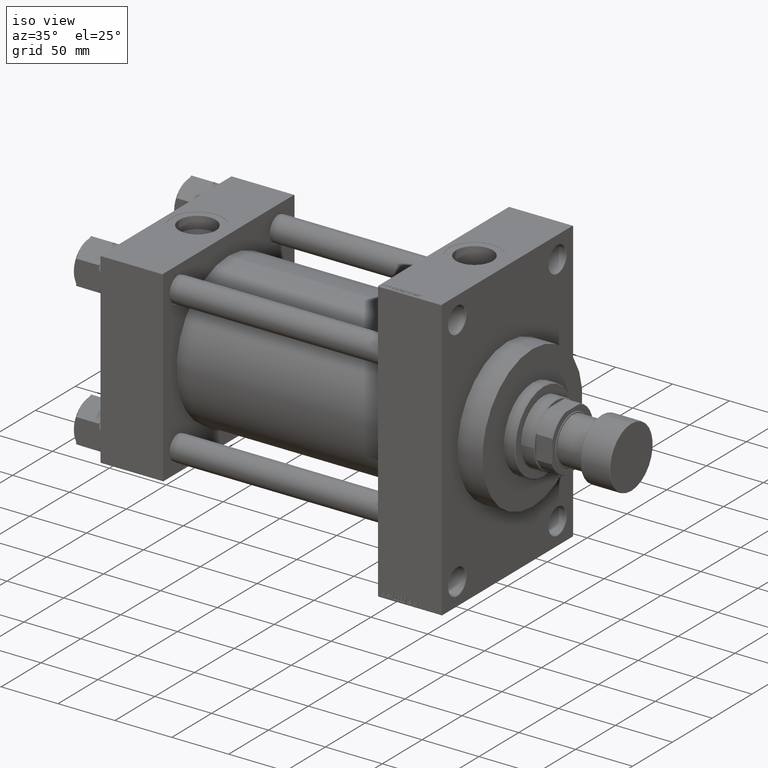
[diagram: clean part render]
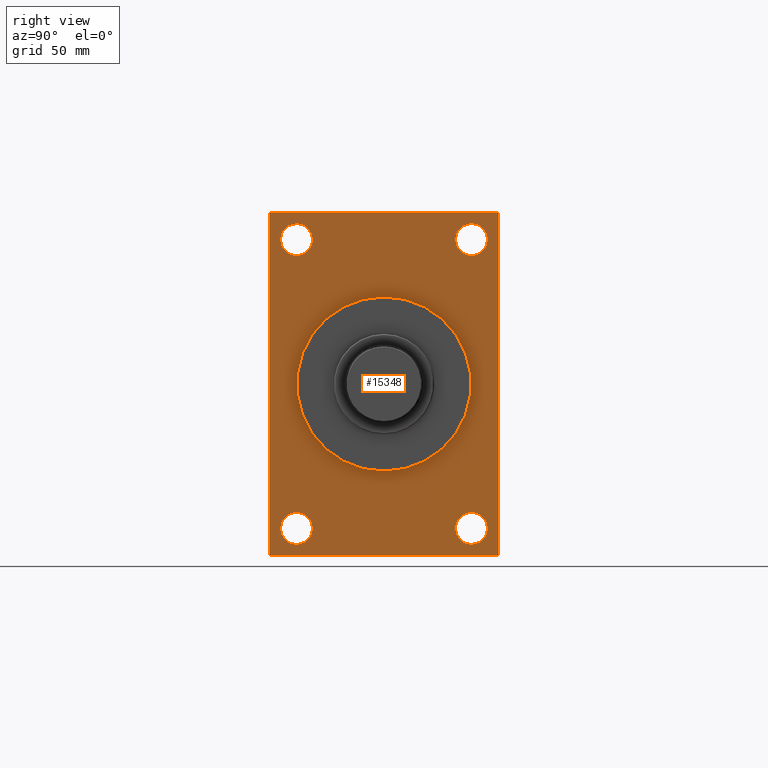
[diagram: tour spotlight — one face highlighted and labeled with its STEP entity id]
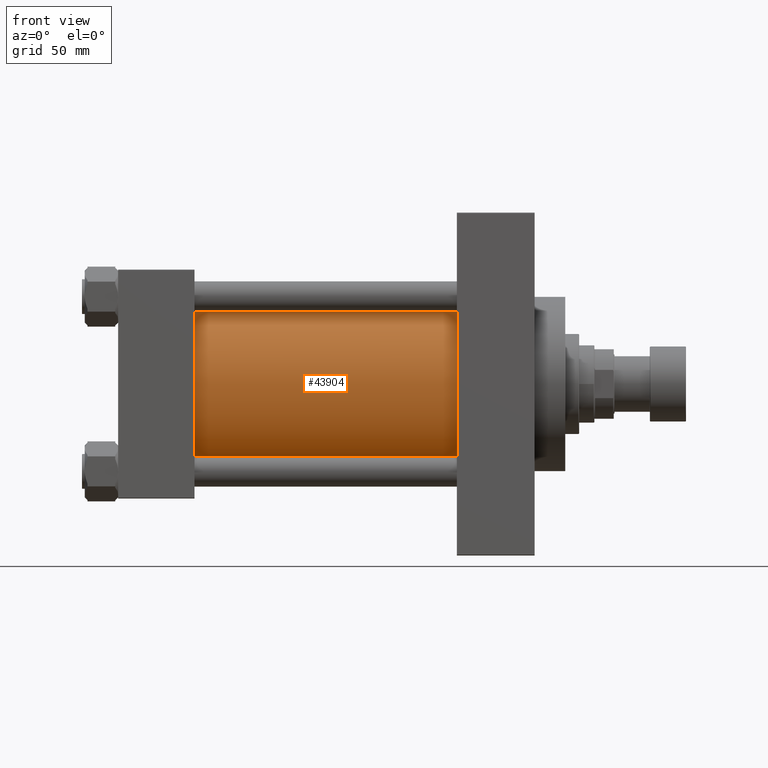
[diagram: tour spotlight — one face highlighted and labeled with its STEP entity id]
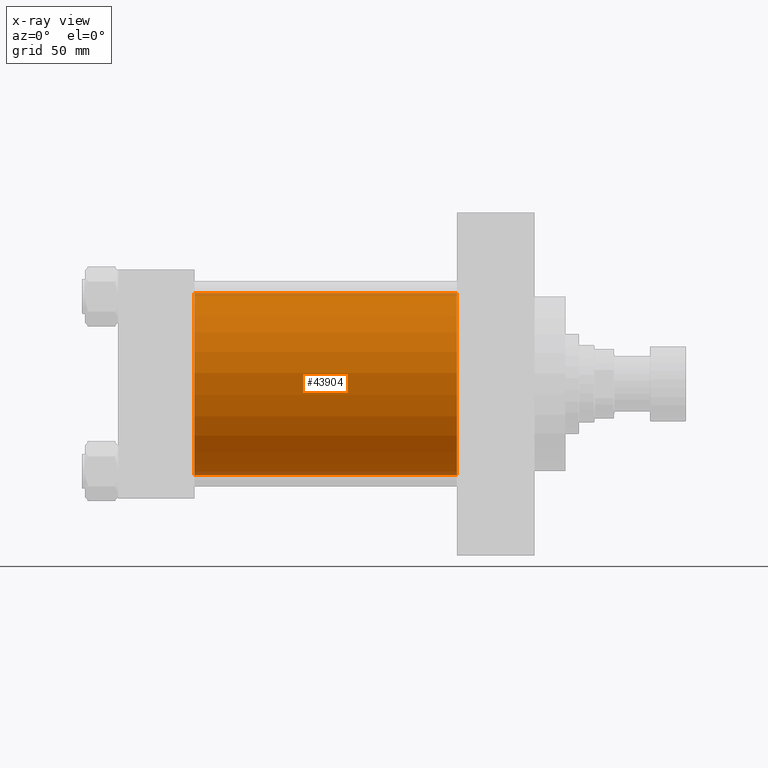
[diagram: x-ray of the same camera — body ghosted, this tour face saturated]
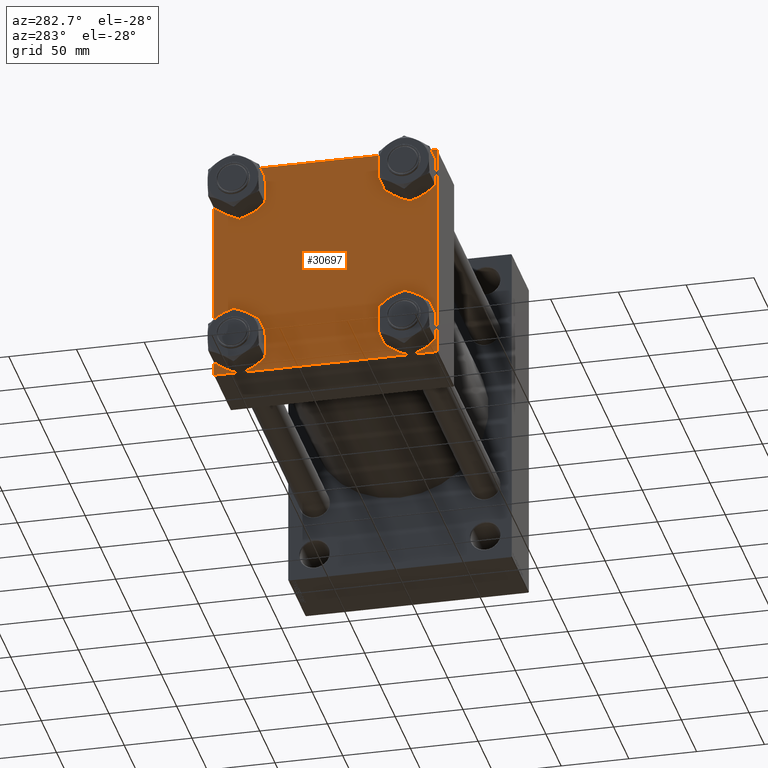
[diagram: tour spotlight — one face highlighted and labeled with its STEP entity id]
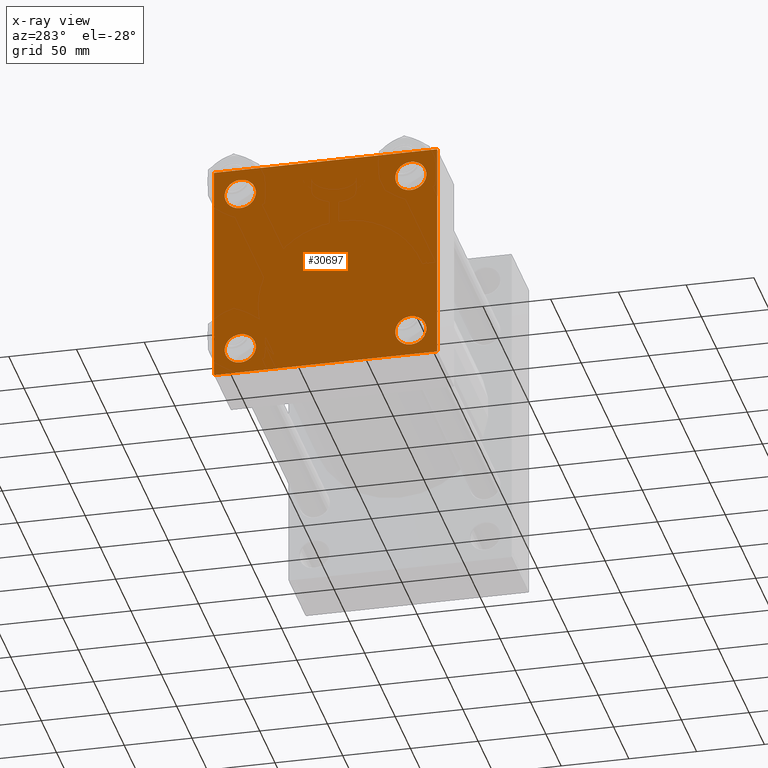
[diagram: x-ray of the same camera — body ghosted, this tour face saturated]
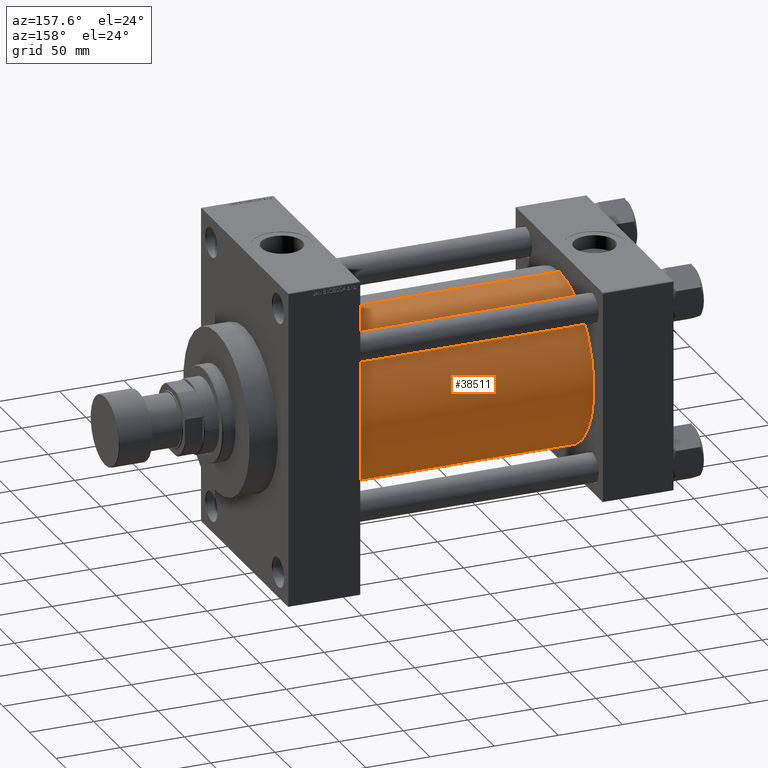
[diagram: tour spotlight — one face highlighted and labeled with its STEP entity id]
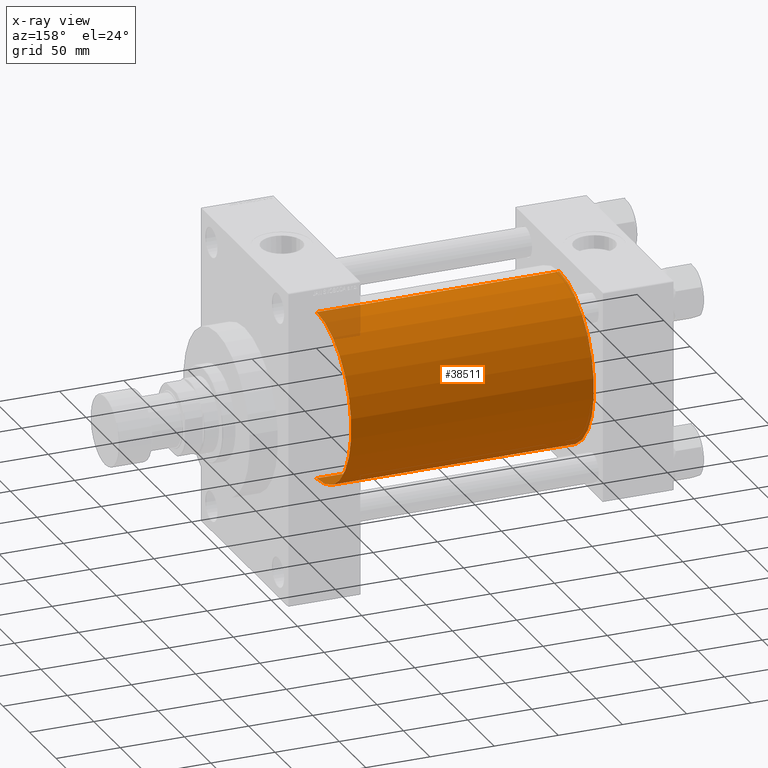
[diagram: x-ray of the same camera — body ghosted, this tour face saturated]
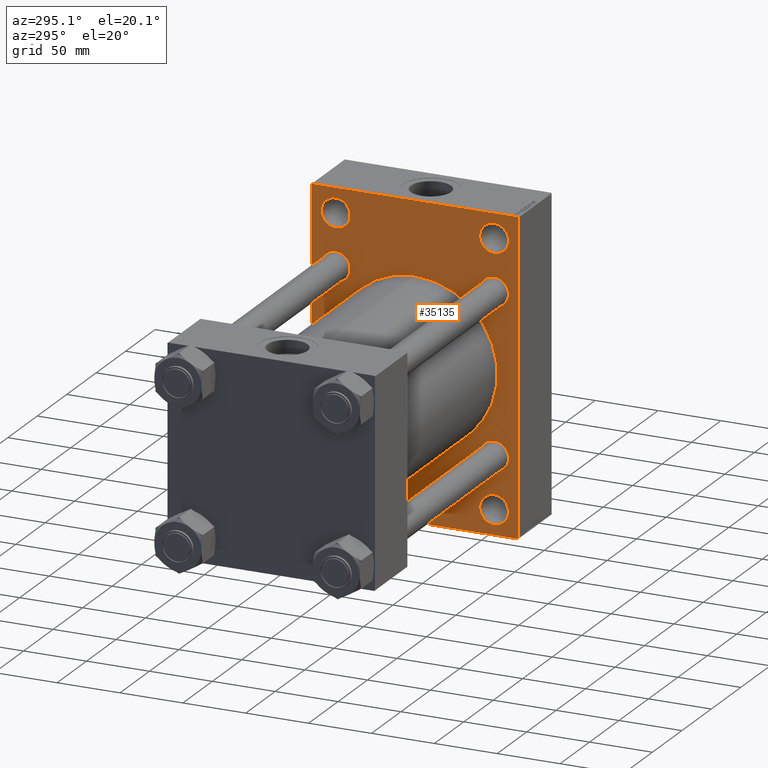
[diagram: tour spotlight — one face highlighted and labeled with its STEP entity id]
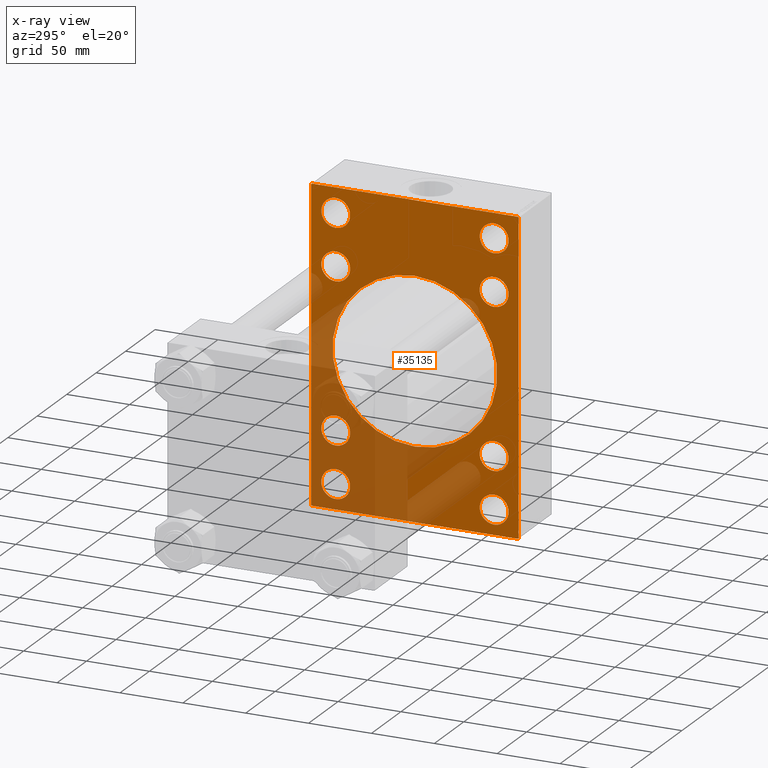
[diagram: x-ray of the same camera — body ghosted, this tour face saturated]
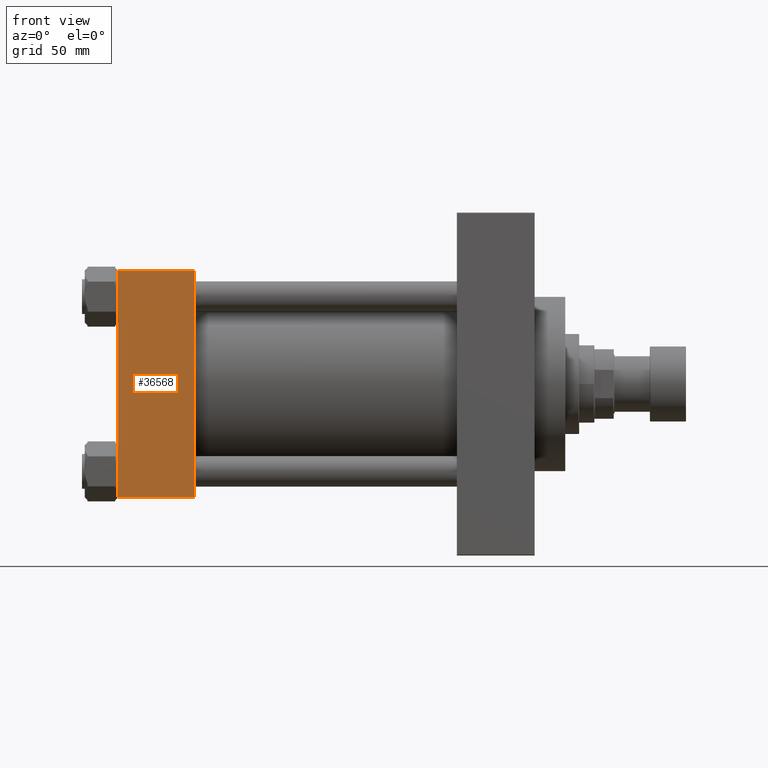
[diagram: tour spotlight — one face highlighted and labeled with its STEP entity id]
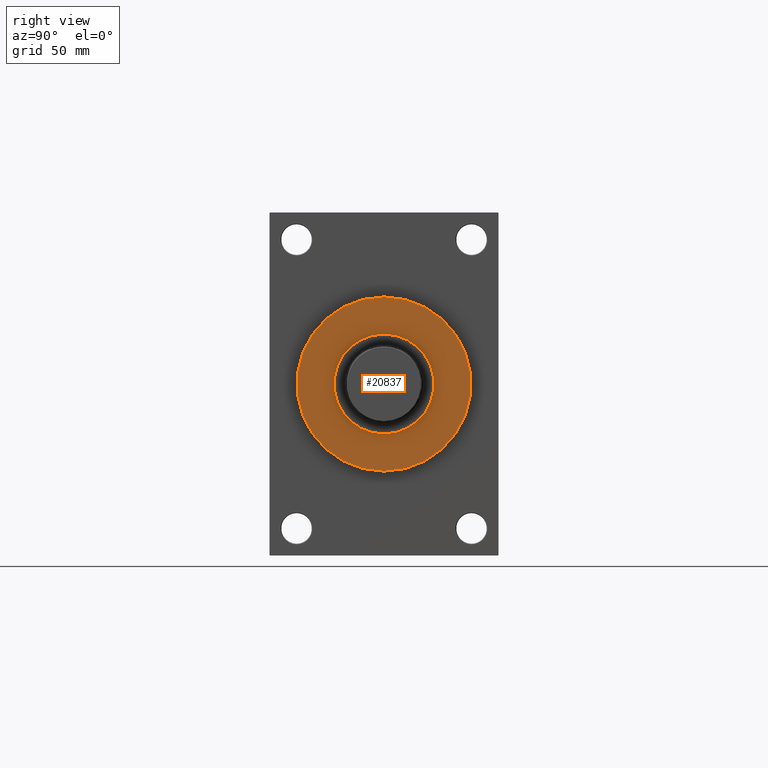
[diagram: tour spotlight — one face highlighted and labeled with its STEP entity id]
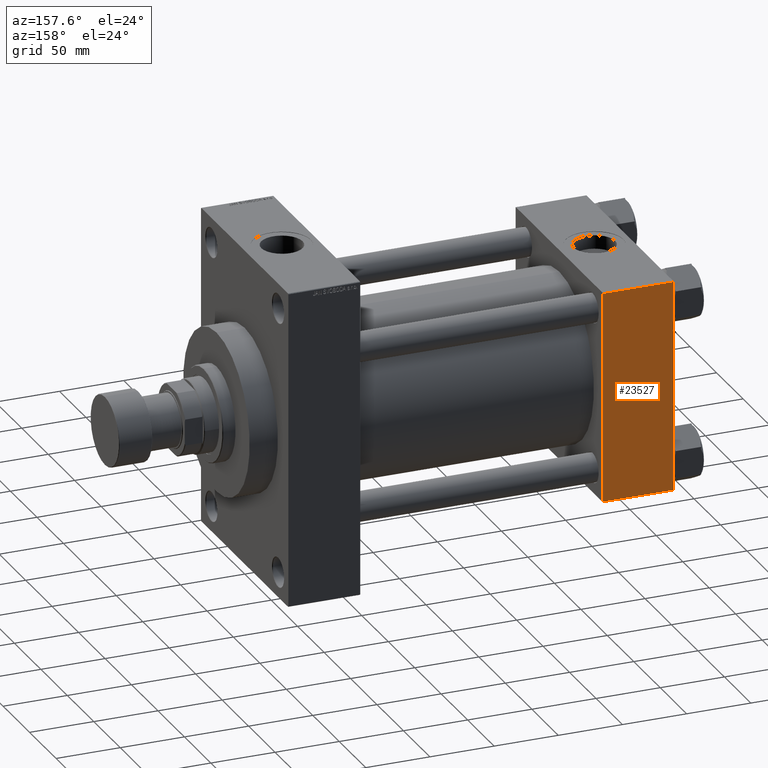
[diagram: tour spotlight — one face highlighted and labeled with its STEP entity id]
A machine part: a face-by-face anatomy tour. The part has 1162 B-rep faces; the first image is the clean iso view, then the 8 largest visible faces are spotlighted one at a time (largest first), each with its STEP entity span.

Face 1 — right view, entity #15348. In plain terms, the highlighted planar face has unit normal (-1, 0, 0).
Definition (entity closure, byte-faithful):
#155 = ORIENTED_EDGE ( 'NONE', *, *, #31632, .T. ) ;
#1116 = EDGE_CURVE ( 'NONE', #8370, #25106, #38867, .T. ) ;
#1399 = DIRECTION ( 'NONE',  ( 0.000000000000000000, 0.000000000000000000, 1.000000000000000000 ) ) ;
#1888 = DIRECTION ( 'NONE',  ( 0.000000000000000000, 0.000000000000000000, 1.000000000000000000 ) ) ;
#2210 = EDGE_CURVE ( 'NONE', #37478, #8370, #37600, .T. ) ;
#2395 = AXIS2_PLACEMENT_3D ( 'NONE', #12464, #30466, #8088 ) ;
#2804 = EDGE_LOOP ( 'NONE', ( #37417, #27028, #37904, #6455, #23031, #15642, #40772, #24872 ) ) ;
#2998 = CIRCLE ( 'NONE', #41114, 11.50000000000001066 ) ;
#3459 = EDGE_CURVE ( 'NONE', #24278, #16037, #21374, .T. ) ;
#3590 = VECTOR ( 'NONE', #46259, 999.9999999999998863 ) ;
#3782 = DIRECTION ( 'NONE',  ( 0.000000000000000000, 0.000000000000000000, -1.000000000000000000 ) ) ;
#4195 = DIRECTION ( 'NONE',  ( 0.000000000000000000, 0.000000000000000000, 1.000000000000000000 ) ) ;
#4230 = VERTEX_POINT ( 'NONE', #33318 ) ;
#4491 = ORIENTED_EDGE ( 'NONE', *, *, #44750, .T. ) ;
#4649 = DIRECTION ( 'NONE',  ( 0.000000000000000000, 0.000000000000000000, -1.000000000000000000 ) ) ;
#4828 = CARTESIAN_POINT ( 'NONE',  ( 300.0000000000000000, 62.99999999999998579, 103.9999999999999858 ) ) ;
#5000 = CARTESIAN_POINT ( 'NONE',  ( 300.0000000000000000, -63.00000000000001421, -115.5000000000000142 ) ) ;
#5136 = CARTESIAN_POINT ( 'NONE',  ( 300.0000000000000000, 0.000000000000000000, 0.000000000000000000 ) ) ;
#5597 = EDGE_CURVE ( 'NONE', #4230, #29933, #27350, .T. ) ;
#5805 = DIRECTION ( 'NONE',  ( -0.000000000000000000, 0.7071067811865376918, 0.7071067811865573427 ) ) ;
#6038 = LINE ( 'NONE', #20882, #42260 ) ;
#6168 = CARTESIAN_POINT ( 'NONE',  ( 300.0000000000000000, -63.00000000000001421, 104.0000000000000000 ) ) ;
#6455 = ORIENTED_EDGE ( 'NONE', *, *, #22054, .T. ) ;
#7638 = CARTESIAN_POINT ( 'NONE',  ( 300.0000000000000000, -63.00000000000001421, 115.5000000000000000 ) ) ;
#7646 = CARTESIAN_POINT ( 'NONE',  ( 300.0000000000000000, 82.49999999999995737, -123.5000000000000284 ) ) ;
#7926 = ORIENTED_EDGE ( 'NONE', *, *, #31313, .T. ) ;
#7981 = CARTESIAN_POINT ( 'NONE',  ( 300.0000000000000000, 0.000000000000000000, 0.000000000000000000 ) ) ;
#8088 = DIRECTION ( 'NONE',  ( 0.000000000000000000, 0.000000000000000000, 1.000000000000000000 ) ) ;
#8370 = VERTEX_POINT ( 'NONE', #46683 ) ;
#8520 = CARTESIAN_POINT ( 'NONE',  ( 300.0000000000000000, -82.50000000000002842, 122.9999999999999716 ) ) ;
#8604 = EDGE_CURVE ( 'NONE', #35431, #30084, #14843, .T. ) ;
#8773 = VECTOR ( 'NONE', #47930, 1000.000000000000114 ) ;
#10057 = DIRECTION ( 'NONE',  ( -1.000000000000000000, 0.000000000000000000, -0.000000000000000000 ) ) ;
#10328 = ORIENTED_EDGE ( 'NONE', *, *, #43306, .T. ) ;
#10706 = CARTESIAN_POINT ( 'NONE',  ( 300.0000000000000000, -82.50000000000002842, 122.9999999999999716 ) ) ;
#11091 = ORIENTED_EDGE ( 'NONE', *, *, #11558, .T. ) ;
#11481 = DIRECTION ( 'NONE',  ( -1.000000000000000000, 0.000000000000000000, -0.000000000000000000 ) ) ;
#11558 = EDGE_CURVE ( 'NONE', #30084, #35431, #20071, .T. ) ;
#11824 = FACE_BOUND ( 'NONE', #26895, .T. ) ;
#12464 = CARTESIAN_POINT ( 'NONE',  ( 300.0000000000000000, 62.99999999999998579, 103.9999999999999858 ) ) ;
#12497 = CARTESIAN_POINT ( 'NONE',  ( 300.0000000000000000, 62.99999999999998579, -92.50000000000000000 ) ) ;
#12554 = CARTESIAN_POINT ( 'NONE',  ( 300.0000000000000000, 82.49999999999995737, 123.4999999999999858 ) ) ;
#12618 = DIRECTION ( 'NONE',  ( 0.000000000000000000, 0.000000000000000000, 1.000000000000000000 ) ) ;
#12666 = CARTESIAN_POINT ( 'NONE',  ( 300.0000000000000000, 82.49999999999995737, 123.4999999999999858 ) ) ;
#13013 = CARTESIAN_POINT ( 'NONE',  ( 300.0000000000000000, -63.00000000000001421, 92.49999999999998579 ) ) ;
#14843 = CIRCLE ( 'NONE', #2395, 11.50000000000001066 ) ;
#15176 = DIRECTION ( 'NONE',  ( 0.000000000000000000, -1.000000000000000000, -8.410780489584520404E-17 ) ) ;
#15348 = ADVANCED_FACE ( 'NONE', ( #11824, #26661, #41556, #35174, #16912, #35654 ), #17382, .F. ) ;
#15537 = EDGE_CURVE ( 'NONE', #24278, #46669, #34830, .T. ) ;
#15539 = DIRECTION ( 'NONE',  ( -1.000000000000000000, 0.000000000000000000, -0.000000000000000000 ) ) ;
#15642 = ORIENTED_EDGE ( 'NONE', *, *, #3459, .T. ) ;
#15771 = DIRECTION ( 'NONE',  ( 0.000000000000000000, 0.000000000000000000, 1.000000000000000000 ) ) ;
#16037 = VERTEX_POINT ( 'NONE', #16688 ) ;
#16240 = DIRECTION ( 'NONE',  ( -1.000000000000000000, 0.000000000000000000, -0.000000000000000000 ) ) ;
#16678 = EDGE_CURVE ( 'NONE', #35789, #31889, #2998, .T. ) ;
#16688 = CARTESIAN_POINT ( 'NONE',  ( 300.0000000000000000, 82.00000000000001421, 123.4999999999999858 ) ) ;
#16912 = FACE_BOUND ( 'NONE', #41513, .T. ) ;
#17154 = VERTEX_POINT ( 'NONE', #13013 ) ;
#17189 = DIRECTION ( 'NONE',  ( -1.000000000000000000, 0.000000000000000000, -0.000000000000000000 ) ) ;
#17278 = CIRCLE ( 'NONE', #19614, 11.50000000000001066 ) ;
#17382 = PLANE ( 'NONE',  #44317 ) ;
#18385 = EDGE_CURVE ( 'NONE', #33298, #36192, #18558, .T. ) ;
#18558 = CIRCLE ( 'NONE', #21648, 62.75000000000000000 ) ;
#18783 = DIRECTION ( 'NONE',  ( -1.000000000000000000, 0.000000000000000000, -0.000000000000000000 ) ) ;
#19086 = CARTESIAN_POINT ( 'NONE',  ( 300.0000000000000000, -82.00000000000001421, 123.4999999999999716 ) ) ;
#19292 = AXIS2_PLACEMENT_3D ( 'NONE', #4828, #27223, #12618 ) ;
#19612 = EDGE_LOOP ( 'NONE', ( #10328, #36437 ) ) ;
#19614 = AXIS2_PLACEMENT_3D ( 'NONE', #41708, #18783, #4195 ) ;
#19859 = DIRECTION ( 'NONE',  ( 0.000000000000000000, 0.7071067811866064146, -0.7071067811864887309 ) ) ;
#19935 = VECTOR ( 'NONE', #19859, 1000.000000000000114 ) ;
#20071 = CIRCLE ( 'NONE', #19292, 11.50000000000001066 ) ;
#20515 = EDGE_LOOP ( 'NONE', ( #44386, #25326 ) ) ;
#20571 = CARTESIAN_POINT ( 'NONE',  ( 300.0000000000000000, -82.00000000000001421, -123.5000000000000426 ) ) ;
#20882 = CARTESIAN_POINT ( 'NONE',  ( 300.0000000000000000, 82.49999999999995737, -123.0000000000000711 ) ) ;
#21008 = DIRECTION ( 'NONE',  ( 0.000000000000000000, 0.000000000000000000, 1.000000000000000000 ) ) ;
#21266 = CIRCLE ( 'NONE', #22799, 62.75000000000000000 ) ;
#21280 = EDGE_LOOP ( 'NONE', ( #11091, #44612 ) ) ;
#21374 = LINE ( 'NONE', #36238, #8773 ) ;
#21648 = AXIS2_PLACEMENT_3D ( 'NONE', #5136, #11481, #30220 ) ;
#21992 = VECTOR ( 'NONE', #15176, 1000.000000000000000 ) ;
#22054 = EDGE_CURVE ( 'NONE', #25343, #46669, #6038, .T. ) ;
#22269 = EDGE_CURVE ( 'NONE', #25343, #25106, #25640, .T. ) ;
#22799 = AXIS2_PLACEMENT_3D ( 'NONE', #7981, #15539, #15771 ) ;
#22930 = AXIS2_PLACEMENT_3D ( 'NONE', #6168, #10057, #21008 ) ;
#22931 = DIRECTION ( 'NONE',  ( -1.000000000000000000, 0.000000000000000000, -0.000000000000000000 ) ) ;
#23031 = ORIENTED_EDGE ( 'NONE', *, *, #15537, .F. ) ;
#23325 = EDGE_CURVE ( 'NONE', #16037, #40746, #45925, .T. ) ;
#23442 = CARTESIAN_POINT ( 'NONE',  ( 300.0000000000000000, 82.49999999999995737, 123.0000000000000995 ) ) ;
#23735 = DIRECTION ( 'NONE',  ( 0.000000000000000000, -1.000000000000000000, -8.410780489584520404E-17 ) ) ;
#23929 = VECTOR ( 'NONE', #3782, 1000.000000000000000 ) ;
#24278 = VERTEX_POINT ( 'NONE', #23442 ) ;
#24542 = CARTESIAN_POINT ( 'NONE',  ( 300.0000000000000000, 62.99999999999998579, 92.49999999999997158 ) ) ;
#24687 = CARTESIAN_POINT ( 'NONE',  ( 300.0000000000000000, 82.00000000000001421, -123.5000000000000284 ) ) ;
#24872 = ORIENTED_EDGE ( 'NONE', *, *, #33096, .T. ) ;
#25106 = VERTEX_POINT ( 'NONE', #20571 ) ;
#25326 = ORIENTED_EDGE ( 'NONE', *, *, #5597, .T. ) ;
#25343 = VERTEX_POINT ( 'NONE', #24687 ) ;
#25640 = LINE ( 'NONE', #7646, #21992 ) ;
#25838 = DIRECTION ( 'NONE',  ( -1.000000000000000000, 0.000000000000000000, -0.000000000000000000 ) ) ;
#26661 = FACE_BOUND ( 'NONE', #20515, .T. ) ;
#26895 = EDGE_LOOP ( 'NONE', ( #155, #7926 ) ) ;
#27028 = ORIENTED_EDGE ( 'NONE', *, *, #1116, .T. ) ;
#27223 = DIRECTION ( 'NONE',  ( -1.000000000000000000, 0.000000000000000000, -0.000000000000000000 ) ) ;
#27350 = CIRCLE ( 'NONE', #40579, 11.50000000000001066 ) ;
#27547 = CARTESIAN_POINT ( 'NONE',  ( 300.0000000000000000, -63.00000000000001421, -104.0000000000000142 ) ) ;
#27574 = CARTESIAN_POINT ( 'NONE',  ( 300.0000000000000000, 0.000000000000000000, -62.75000000000000000 ) ) ;
#28646 = VECTOR ( 'NONE', #4649, 1000.000000000000000 ) ;
#29510 = CARTESIAN_POINT ( 'NONE',  ( 300.0000000000000000, 62.99999999999998579, -104.0000000000000142 ) ) ;
#29933 = VERTEX_POINT ( 'NONE', #5000 ) ;
#30084 = VERTEX_POINT ( 'NONE', #24542 ) ;
#30220 = DIRECTION ( 'NONE',  ( 0.000000000000000000, 0.000000000000000000, 1.000000000000000000 ) ) ;
#30466 = DIRECTION ( 'NONE',  ( -1.000000000000000000, 0.000000000000000000, -0.000000000000000000 ) ) ;
#30611 = CARTESIAN_POINT ( 'NONE',  ( 300.0000000000000000, 7.684658664649641591E-15, 62.75000000000000000 ) ) ;
#30821 = CARTESIAN_POINT ( 'NONE',  ( 300.0000000000000000, 62.99999999999998579, 115.4999999999999858 ) ) ;
#31313 = EDGE_CURVE ( 'NONE', #33526, #17154, #40053, .T. ) ;
#31632 = EDGE_CURVE ( 'NONE', #17154, #33526, #46277, .T. ) ;
#31756 = CARTESIAN_POINT ( 'NONE',  ( 300.0000000000000000, 0.000000000000000000, 0.000000000000000000 ) ) ;
#31889 = VERTEX_POINT ( 'NONE', #34377 ) ;
#32285 = CARTESIAN_POINT ( 'NONE',  ( 300.0000000000000000, 62.99999999999998579, -104.0000000000000142 ) ) ;
#32920 = DIRECTION ( 'NONE',  ( 0.000000000000000000, 0.000000000000000000, 1.000000000000000000 ) ) ;
#33096 = EDGE_CURVE ( 'NONE', #40746, #37478, #41903, .T. ) ;
#33298 = VERTEX_POINT ( 'NONE', #30611 ) ;
#33318 = CARTESIAN_POINT ( 'NONE',  ( 300.0000000000000000, -63.00000000000001421, -92.50000000000000000 ) ) ;
#33526 = VERTEX_POINT ( 'NONE', #7638 ) ;
#34236 = CARTESIAN_POINT ( 'NONE',  ( 300.0000000000000000, -82.00000000000001421, -123.5000000000000426 ) ) ;
#34374 = DIRECTION ( 'NONE',  ( 0.000000000000000000, 0.000000000000000000, 1.000000000000000000 ) ) ;
#34377 = CARTESIAN_POINT ( 'NONE',  ( 300.0000000000000000, 62.99999999999998579, -115.5000000000000142 ) ) ;
#34830 = LINE ( 'NONE', #12666, #28646 ) ;
#35174 = FACE_BOUND ( 'NONE', #21280, .T. ) ;
#35200 = ORIENTED_EDGE ( 'NONE', *, *, #18385, .T. ) ;
#35431 = VERTEX_POINT ( 'NONE', #30821 ) ;
#35654 = FACE_OUTER_BOUND ( 'NONE', #2804, .T. ) ;
#35789 = VERTEX_POINT ( 'NONE', #12497 ) ;
#36192 = VERTEX_POINT ( 'NONE', #27574 ) ;
#36238 = CARTESIAN_POINT ( 'NONE',  ( 300.0000000000000000, 82.00000000000001421, 123.4999999999999858 ) ) ;
#36437 = ORIENTED_EDGE ( 'NONE', *, *, #16678, .T. ) ;
#37417 = ORIENTED_EDGE ( 'NONE', *, *, #2210, .T. ) ;
#37478 = VERTEX_POINT ( 'NONE', #10706 ) ;
#37600 = LINE ( 'NONE', #40547, #23929 ) ;
#37904 = ORIENTED_EDGE ( 'NONE', *, *, #22269, .F. ) ;
#38614 = DIRECTION ( 'NONE',  ( -0.000000000000000000, 0.000000000000000000, 1.000000000000000000 ) ) ;
#38867 = LINE ( 'NONE', #34236, #19935 ) ;
#40053 = CIRCLE ( 'NONE', #41633, 11.50000000000001066 ) ;
#40547 = CARTESIAN_POINT ( 'NONE',  ( 300.0000000000000000, -82.50000000000002842, 123.4999999999999716 ) ) ;
#40579 = AXIS2_PLACEMENT_3D ( 'NONE', #27547, #22931, #34374 ) ;
#40746 = VERTEX_POINT ( 'NONE', #19086 ) ;
#40772 = ORIENTED_EDGE ( 'NONE', *, *, #23325, .T. ) ;
#41044 = EDGE_CURVE ( 'NONE', #29933, #4230, #17278, .T. ) ;
#41114 = AXIS2_PLACEMENT_3D ( 'NONE', #32285, #17189, #1888 ) ;
#41470 = CIRCLE ( 'NONE', #43783, 11.50000000000001066 ) ;
#41513 = EDGE_LOOP ( 'NONE', ( #4491, #35200 ) ) ;
#41531 = VECTOR ( 'NONE', #23735, 1000.000000000000000 ) ;
#41556 = FACE_BOUND ( 'NONE', #19612, .T. ) ;
#41633 = AXIS2_PLACEMENT_3D ( 'NONE', #46189, #16240, #1399 ) ;
#41708 = CARTESIAN_POINT ( 'NONE',  ( 300.0000000000000000, -63.00000000000001421, -104.0000000000000142 ) ) ;
#41903 = LINE ( 'NONE', #8520, #3590 ) ;
#42260 = VECTOR ( 'NONE', #5805, 1000.000000000000114 ) ;
#42982 = DIRECTION ( 'NONE',  ( -1.000000000000000000, 0.000000000000000000, -0.000000000000000000 ) ) ;
#43306 = EDGE_CURVE ( 'NONE', #31889, #35789, #41470, .T. ) ;
#43783 = AXIS2_PLACEMENT_3D ( 'NONE', #29510, #25838, #32920 ) ;
#44317 = AXIS2_PLACEMENT_3D ( 'NONE', #31756, #42982, #38614 ) ;
#44386 = ORIENTED_EDGE ( 'NONE', *, *, #41044, .T. ) ;
#44612 = ORIENTED_EDGE ( 'NONE', *, *, #8604, .T. ) ;
#44750 = EDGE_CURVE ( 'NONE', #36192, #33298, #21266, .T. ) ;
#45925 = LINE ( 'NONE', #12554, #41531 ) ;
#46189 = CARTESIAN_POINT ( 'NONE',  ( 300.0000000000000000, -63.00000000000001421, 104.0000000000000000 ) ) ;
#46259 = DIRECTION ( 'NONE',  ( -0.000000000000000000, -0.7071067811865574537, -0.7071067811865376918 ) ) ;
#46277 = CIRCLE ( 'NONE', #22930, 11.50000000000001066 ) ;
#46669 = VERTEX_POINT ( 'NONE', #46748 ) ;
#46683 = CARTESIAN_POINT ( 'NONE',  ( 300.0000000000000000, -82.50000000000002842, -123.0000000000001137 ) ) ;
#46748 = CARTESIAN_POINT ( 'NONE',  ( 300.0000000000000000, 82.49999999999995737, -123.0000000000000711 ) ) ;
#47930 = DIRECTION ( 'NONE',  ( 0.000000000000000000, -0.7071067811865867636, 0.7071067811865082708 ) ) ;

Face 2 — front view, entity #43904. An x-ray twin of the same camera follows (body ghosted, this face saturated) — the face is partly hidden behind the body. In plain terms, the highlighted cylindrical surface (partial cylindrical patch) has radius 65.5 mm, axis along (-1, -0, -0).
Definition (entity closure, byte-faithful):
#198 = CARTESIAN_POINT ( 'NONE',  ( 244.0000000000000000, -2.602085213965210642E-15, 65.50000000000001421 ) ) ;
#2626 = AXIS2_PLACEMENT_3D ( 'NONE', #39622, #17442, #21087 ) ;
#2940 = VECTOR ( 'NONE', #3134, 1000.000000000000000 ) ;
#3134 = DIRECTION ( 'NONE',  ( -1.000000000000000000, -0.000000000000000000, -0.000000000000000000 ) ) ;
#3789 = ORIENTED_EDGE ( 'NONE', *, *, #21003, .F. ) ;
#4871 = DIRECTION ( 'NONE',  ( 0.000000000000000000, 0.000000000000000000, 1.000000000000000000 ) ) ;
#7439 = ORIENTED_EDGE ( 'NONE', *, *, #10629, .T. ) ;
#7885 = EDGE_CURVE ( 'NONE', #23719, #20796, #30138, .T. ) ;
#10421 = CARTESIAN_POINT ( 'NONE',  ( 54.99999999999999289, 5.419351320449954973E-15, -65.50000000000001421 ) ) ;
#10629 = EDGE_CURVE ( 'NONE', #16103, #23719, #18449, .T. ) ;
#10944 = VERTEX_POINT ( 'NONE', #47878 ) ;
#13503 = CARTESIAN_POINT ( 'NONE',  ( 244.0000000000000000, -2.602085213965210642E-15, 65.50000000000001421 ) ) ;
#13565 = CARTESIAN_POINT ( 'NONE',  ( 54.99999999999999289, -2.602085213965210642E-15, 65.50000000000001421 ) ) ;
#13805 = AXIS2_PLACEMENT_3D ( 'NONE', #31397, #27745, #4871 ) ;
#13988 = ORIENTED_EDGE ( 'NONE', *, *, #41777, .F. ) ;
#15282 = CARTESIAN_POINT ( 'NONE',  ( 244.0000000000000000, 5.419351320449954973E-15, -65.50000000000001421 ) ) ;
#16103 = VERTEX_POINT ( 'NONE', #13503 ) ;
#17442 = DIRECTION ( 'NONE',  ( 1.000000000000000000, 0.000000000000000000, 0.000000000000000000 ) ) ;
#18449 = LINE ( 'NONE', #198, #2940 ) ;
#20796 = VERTEX_POINT ( 'NONE', #10421 ) ;
#21003 = EDGE_CURVE ( 'NONE', #10944, #20796, #41350, .T. ) ;
#21087 = DIRECTION ( 'NONE',  ( 0.000000000000000000, 0.000000000000000000, -1.000000000000000000 ) ) ;
#23605 = CIRCLE ( 'NONE', #2626, 65.50000000000001421 ) ;
#23719 = VERTEX_POINT ( 'NONE', #13565 ) ;
#27745 = DIRECTION ( 'NONE',  ( 1.000000000000000000, 0.000000000000000000, 0.000000000000000000 ) ) ;
#28813 = CYLINDRICAL_SURFACE ( 'NONE', #31368, 65.50000000000001421 ) ;
#30138 = CIRCLE ( 'NONE', #13805, 65.50000000000001421 ) ;
#31368 = AXIS2_PLACEMENT_3D ( 'NONE', #39066, #35410, #36122 ) ;
#31397 = CARTESIAN_POINT ( 'NONE',  ( 54.99999999999999289, -2.602085213965210642E-15, 0.000000000000000000 ) ) ;
#32224 = FACE_OUTER_BOUND ( 'NONE', #42903, .T. ) ;
#34185 = ORIENTED_EDGE ( 'NONE', *, *, #7885, .T. ) ;
#35410 = DIRECTION ( 'NONE',  ( -1.000000000000000000, -0.000000000000000000, -0.000000000000000000 ) ) ;
#36122 = DIRECTION ( 'NONE',  ( 0.000000000000000000, 0.000000000000000000, 1.000000000000000000 ) ) ;
#39066 = CARTESIAN_POINT ( 'NONE',  ( 244.0000000000000000, -2.602085213965210642E-15, 0.000000000000000000 ) ) ;
#39622 = CARTESIAN_POINT ( 'NONE',  ( 244.0000000000000000, -2.602085213965210642E-15, 0.000000000000000000 ) ) ;
#40645 = VECTOR ( 'NONE', #44756, 1000.000000000000000 ) ;
#41350 = LINE ( 'NONE', #15282, #40645 ) ;
#41777 = EDGE_CURVE ( 'NONE', #16103, #10944, #23605, .T. ) ;
#42903 = EDGE_LOOP ( 'NONE', ( #3789, #13988, #7439, #34185 ) ) ;
#43904 = ADVANCED_FACE ( 'NONE', ( #32224 ), #28813, .T. ) ;
#44756 = DIRECTION ( 'NONE',  ( -1.000000000000000000, -0.000000000000000000, -0.000000000000000000 ) ) ;
#47878 = CARTESIAN_POINT ( 'NONE',  ( 244.0000000000000000, 5.419351320449954973E-15, -65.50000000000001421 ) ) ;

Face 3 — auxiliary view, entity #30697. An x-ray twin of the same camera follows (body ghosted, this face saturated) — the face is partly hidden behind the body. In plain terms, the highlighted planar face has unit normal (-1, 0, 0).
Definition (entity closure, byte-faithful):
#9 = DIRECTION ( 'NONE',  ( 1.000000000000000000, 0.000000000000000000, 0.000000000000000000 ) ) ;
#64 = VERTEX_POINT ( 'NONE', #160 ) ;
#160 = CARTESIAN_POINT ( 'NONE',  ( 0.000000000000000000, 62.94999999999998863, -74.45000000000010232 ) ) ;
#235 = EDGE_CURVE ( 'NONE', #33760, #24839, #18202, .T. ) ;
#246 = DIRECTION ( 'NONE',  ( 0.000000000000000000, 0.000000000000000000, 1.000000000000000000 ) ) ;
#304 = VERTEX_POINT ( 'NONE', #31644 ) ;
#311 = AXIS2_PLACEMENT_3D ( 'NONE', #487, #15336, #246 ) ;
#356 = VECTOR ( 'NONE', #33533, 1000.000000000000114 ) ;
#442 = DIRECTION ( 'NONE',  ( 1.000000000000000000, 0.000000000000000000, 0.000000000000000000 ) ) ;
#487 = CARTESIAN_POINT ( 'NONE',  ( 0.000000000000000000, -62.94999999999996732, -62.95000000000001705 ) ) ;
#661 = ORIENTED_EDGE ( 'NONE', *, *, #10611, .T. ) ;
#738 = VERTEX_POINT ( 'NONE', #36453 ) ;
#896 = LINE ( 'NONE', #30341, #40669 ) ;
#1768 = CARTESIAN_POINT ( 'NONE',  ( 0.000000000000000000, 82.50000000000001421, 82.49999999999998579 ) ) ;
#1887 = LINE ( 'NONE', #16964, #43916 ) ;
#2712 = EDGE_CURVE ( 'NONE', #304, #3192, #22757, .T. ) ;
#3192 = VERTEX_POINT ( 'NONE', #40453 ) ;
#3702 = CARTESIAN_POINT ( 'NONE',  ( 0.000000000000000000, -62.94999999999996732, 62.95000000000001705 ) ) ;
#3718 = CIRCLE ( 'NONE', #31700, 11.50000000000009415 ) ;
#3875 = CARTESIAN_POINT ( 'NONE',  ( 0.000000000000000000, 82.50000000000001421, 82.49999999999998579 ) ) ;
#5338 = DIRECTION ( 'NONE',  ( 1.000000000000000000, 0.000000000000000000, 0.000000000000000000 ) ) ;
#6165 = AXIS2_PLACEMENT_3D ( 'NONE', #30748, #39011, #45616 ) ;
#6398 = DIRECTION ( 'NONE',  ( 1.000000000000000000, 0.000000000000000000, 0.000000000000000000 ) ) ;
#6451 = ORIENTED_EDGE ( 'NONE', *, *, #40563, .T. ) ;
#6569 = AXIS2_PLACEMENT_3D ( 'NONE', #11678, #9, #14848 ) ;
#6977 = ORIENTED_EDGE ( 'NONE', *, *, #30765, .T. ) ;
#7010 = EDGE_CURVE ( 'NONE', #36950, #11638, #44283, .T. ) ;
#7291 = ORIENTED_EDGE ( 'NONE', *, *, #14483, .T. ) ;
#7459 = CARTESIAN_POINT ( 'NONE',  ( 0.000000000000000000, -82.49999999999998579, 82.49999999999995737 ) ) ;
#8456 = LINE ( 'NONE', #18440, #356 ) ;
#8819 = AXIS2_PLACEMENT_3D ( 'NONE', #24061, #5338, #38930 ) ;
#10001 = AXIS2_PLACEMENT_3D ( 'NONE', #22774, #22060, #15248 ) ;
#10055 = CARTESIAN_POINT ( 'NONE',  ( 0.000000000000000000, 62.94999999999998863, 62.95000000000000284 ) ) ;
#10086 = ORIENTED_EDGE ( 'NONE', *, *, #45056, .F. ) ;
#10091 = CARTESIAN_POINT ( 'NONE',  ( 0.000000000000000000, -81.99999999999995737, -82.49999999999998579 ) ) ;
#10273 = VERTEX_POINT ( 'NONE', #33599 ) ;
#10611 = EDGE_CURVE ( 'NONE', #64, #34492, #3718, .T. ) ;
#11150 = DIRECTION ( 'NONE',  ( 0.000000000000000000, -1.000000000000000000, 0.000000000000000000 ) ) ;
#11638 = VERTEX_POINT ( 'NONE', #10091 ) ;
#11678 = CARTESIAN_POINT ( 'NONE',  ( 0.000000000000000000, 62.94999999999998863, 62.95000000000000284 ) ) ;
#11697 = CARTESIAN_POINT ( 'NONE',  ( -0.000000000000000000, 82.25000000000000000, 82.25000000000000000 ) ) ;
#13650 = PLANE ( 'NONE',  #42362 ) ;
#13973 = EDGE_CURVE ( 'NONE', #40385, #10273, #36807, .T. ) ;
#14483 = EDGE_CURVE ( 'NONE', #24839, #33760, #44279, .T. ) ;
#14848 = DIRECTION ( 'NONE',  ( 0.000000000000000000, 0.000000000000000000, 1.000000000000000000 ) ) ;
#14967 = EDGE_LOOP ( 'NONE', ( #45947, #6977 ) ) ;
#15248 = DIRECTION ( 'NONE',  ( 0.000000000000000000, 0.000000000000000000, 1.000000000000000000 ) ) ;
#15336 = DIRECTION ( 'NONE',  ( 1.000000000000000000, 0.000000000000000000, 0.000000000000000000 ) ) ;
#15500 = VECTOR ( 'NONE', #38483, 1000.000000000000114 ) ;
#15506 = ORIENTED_EDGE ( 'NONE', *, *, #13973, .T. ) ;
#15600 = CARTESIAN_POINT ( 'NONE',  ( 0.000000000000000000, -62.94999999999996732, 74.45000000000011653 ) ) ;
#15836 = VECTOR ( 'NONE', #21806, 1000.000000000000000 ) ;
#16126 = ORIENTED_EDGE ( 'NONE', *, *, #235, .T. ) ;
#16964 = CARTESIAN_POINT ( 'NONE',  ( 0.000000000000000000, -82.24999999999883471, -82.25000000000112266 ) ) ;
#17287 = FACE_BOUND ( 'NONE', #14967, .T. ) ;
#17364 = VECTOR ( 'NONE', #28274, 1000.000000000000000 ) ;
#17774 = EDGE_CURVE ( 'NONE', #34492, #64, #34094, .T. ) ;
#17871 = VERTEX_POINT ( 'NONE', #40359 ) ;
#18202 = CIRCLE ( 'NONE', #47769, 11.50000000000009415 ) ;
#18278 = CARTESIAN_POINT ( 'NONE',  ( 0.000000000000000000, 82.50000000000001421, -82.00000000000001421 ) ) ;
#18440 = CARTESIAN_POINT ( 'NONE',  ( -0.000000000000000000, -82.24999999999997158, 82.24999999999997158 ) ) ;
#20782 = VECTOR ( 'NONE', #11150, 1000.000000000000000 ) ;
#20950 = DIRECTION ( 'NONE',  ( -1.000000000000000000, 0.000000000000000000, -0.000000000000000000 ) ) ;
#21178 = FACE_BOUND ( 'NONE', #35605, .T. ) ;
#21675 = FACE_BOUND ( 'NONE', #37032, .T. ) ;
#21806 = DIRECTION ( 'NONE',  ( 0.000000000000000000, 8.410780489584520404E-17, -1.000000000000000000 ) ) ;
#21861 = DIRECTION ( 'NONE',  ( 0.000000000000000000, 0.000000000000000000, 1.000000000000000000 ) ) ;
#22060 = DIRECTION ( 'NONE',  ( 1.000000000000000000, 0.000000000000000000, 0.000000000000000000 ) ) ;
#22359 = LINE ( 'NONE', #3875, #38292 ) ;
#22364 = CARTESIAN_POINT ( 'NONE',  ( 0.000000000000000000, -62.94999999999996732, 51.44999999999992468 ) ) ;
#22532 = EDGE_CURVE ( 'NONE', #40385, #42890, #47045, .T. ) ;
#22757 = CIRCLE ( 'NONE', #47663, 11.50000000000001066 ) ;
#22767 = ORIENTED_EDGE ( 'NONE', *, *, #41593, .T. ) ;
#22774 = CARTESIAN_POINT ( 'NONE',  ( 0.000000000000000000, 62.94999999999998863, -62.95000000000000284 ) ) ;
#23924 = ORIENTED_EDGE ( 'NONE', *, *, #27444, .T. ) ;
#24061 = CARTESIAN_POINT ( 'NONE',  ( 0.000000000000000000, -62.94999999999996732, -62.95000000000001705 ) ) ;
#24839 = VERTEX_POINT ( 'NONE', #22364 ) ;
#25059 = FACE_BOUND ( 'NONE', #37062, .T. ) ;
#25183 = ORIENTED_EDGE ( 'NONE', *, *, #39540, .T. ) ;
#25989 = CARTESIAN_POINT ( 'NONE',  ( 0.000000000000000000, 62.94999999999998863, -62.95000000000000284 ) ) ;
#26007 = EDGE_LOOP ( 'NONE', ( #22767, #25183, #33254, #42052, #10086, #23924, #43008, #15506 ) ) ;
#26030 = CARTESIAN_POINT ( 'NONE',  ( 0.000000000000000000, 82.00000000000001421, 82.49999999999998579 ) ) ;
#26926 = DIRECTION ( 'NONE',  ( -0.000000000000000000, -0.7071067811865474617, -0.7071067811865474617 ) ) ;
#27444 = EDGE_CURVE ( 'NONE', #30340, #42890, #8456, .T. ) ;
#28274 = DIRECTION ( 'NONE',  ( 0.000000000000000000, -1.000000000000000000, -1.682156097916903834E-16 ) ) ;
#28492 = DIRECTION ( 'NONE',  ( -0.000000000000000000, 0.000000000000000000, 1.000000000000000000 ) ) ;
#28734 = CARTESIAN_POINT ( 'NONE',  ( 0.000000000000000000, 0.000000000000000000, 0.000000000000000000 ) ) ;
#29645 = EDGE_CURVE ( 'NONE', #11638, #738, #1887, .T. ) ;
#30340 = VERTEX_POINT ( 'NONE', #34737 ) ;
#30341 = CARTESIAN_POINT ( 'NONE',  ( -0.000000000000000000, 82.25000000000001421, -82.25000000000001421 ) ) ;
#30697 = ADVANCED_FACE ( 'NONE', ( #21675, #25059, #21178, #17287, #40448 ), #13650, .T. ) ;
#30748 = CARTESIAN_POINT ( 'NONE',  ( 0.000000000000000000, -62.94999999999996732, 62.95000000000001705 ) ) ;
#30765 = EDGE_CURVE ( 'NONE', #3192, #304, #36914, .T. ) ;
#31644 = CARTESIAN_POINT ( 'NONE',  ( 0.000000000000000000, 62.94999999999998863, 74.45000000000001705 ) ) ;
#31700 = AXIS2_PLACEMENT_3D ( 'NONE', #25989, #442, #21861 ) ;
#32042 = CIRCLE ( 'NONE', #311, 11.50000000000009415 ) ;
#32901 = CIRCLE ( 'NONE', #8819, 11.50000000000009415 ) ;
#33254 = ORIENTED_EDGE ( 'NONE', *, *, #7010, .T. ) ;
#33533 = DIRECTION ( 'NONE',  ( -0.000000000000000000, 0.7071067811865474617, 0.7071067811865474617 ) ) ;
#33599 = CARTESIAN_POINT ( 'NONE',  ( 0.000000000000000000, 82.50000000000001421, 81.99999999999998579 ) ) ;
#33760 = VERTEX_POINT ( 'NONE', #15600 ) ;
#33796 = VERTEX_POINT ( 'NONE', #18278 ) ;
#33867 = DIRECTION ( 'NONE',  ( 1.000000000000000000, 0.000000000000000000, 0.000000000000000000 ) ) ;
#34094 = CIRCLE ( 'NONE', #10001, 11.50000000000009415 ) ;
#34492 = VERTEX_POINT ( 'NONE', #39067 ) ;
#34627 = ORIENTED_EDGE ( 'NONE', *, *, #41276, .T. ) ;
#34737 = CARTESIAN_POINT ( 'NONE',  ( 0.000000000000000000, -82.49999999999998579, 81.99999999999995737 ) ) ;
#35605 = EDGE_LOOP ( 'NONE', ( #46355, #661 ) ) ;
#36453 = CARTESIAN_POINT ( 'NONE',  ( 0.000000000000000000, -82.49999999999997158, -81.99999999999998579 ) ) ;
#36721 = CARTESIAN_POINT ( 'NONE',  ( 0.000000000000000000, 82.50000000000001421, -82.49999999999998579 ) ) ;
#36807 = LINE ( 'NONE', #11697, #15500 ) ;
#36914 = CIRCLE ( 'NONE', #6569, 11.50000000000001066 ) ;
#36950 = VERTEX_POINT ( 'NONE', #47178 ) ;
#37032 = EDGE_LOOP ( 'NONE', ( #16126, #7291 ) ) ;
#37062 = EDGE_LOOP ( 'NONE', ( #34627, #6451 ) ) ;
#37385 = LINE ( 'NONE', #7459, #15836 ) ;
#38292 = VECTOR ( 'NONE', #45259, 1000.000000000000000 ) ;
#38483 = DIRECTION ( 'NONE',  ( 0.000000000000000000, 0.7071067811865474617, -0.7071067811865474617 ) ) ;
#38865 = CARTESIAN_POINT ( 'NONE',  ( 0.000000000000000000, -81.99999999999998579, 82.49999999999995737 ) ) ;
#38930 = DIRECTION ( 'NONE',  ( 0.000000000000000000, 0.000000000000000000, 1.000000000000000000 ) ) ;
#39011 = DIRECTION ( 'NONE',  ( 1.000000000000000000, 0.000000000000000000, 0.000000000000000000 ) ) ;
#39067 = CARTESIAN_POINT ( 'NONE',  ( 0.000000000000000000, 62.94999999999998863, -51.44999999999991047 ) ) ;
#39540 = EDGE_CURVE ( 'NONE', #33796, #36950, #896, .T. ) ;
#40037 = CARTESIAN_POINT ( 'NONE',  ( 0.000000000000000000, -62.94999999999996732, -51.44999999999992468 ) ) ;
#40359 = CARTESIAN_POINT ( 'NONE',  ( 0.000000000000000000, -62.94999999999996732, -74.45000000000011653 ) ) ;
#40385 = VERTEX_POINT ( 'NONE', #26030 ) ;
#40448 = FACE_OUTER_BOUND ( 'NONE', #26007, .T. ) ;
#40453 = CARTESIAN_POINT ( 'NONE',  ( 0.000000000000000000, 62.94999999999998863, 51.44999999999999574 ) ) ;
#40563 = EDGE_CURVE ( 'NONE', #17871, #47248, #32901, .T. ) ;
#40669 = VECTOR ( 'NONE', #26926, 1000.000000000000114 ) ;
#41276 = EDGE_CURVE ( 'NONE', #47248, #17871, #32042, .T. ) ;
#41593 = EDGE_CURVE ( 'NONE', #10273, #33796, #22359, .T. ) ;
#42052 = ORIENTED_EDGE ( 'NONE', *, *, #29645, .T. ) ;
#42362 = AXIS2_PLACEMENT_3D ( 'NONE', #28734, #20950, #28492 ) ;
#42890 = VERTEX_POINT ( 'NONE', #38865 ) ;
#43008 = ORIENTED_EDGE ( 'NONE', *, *, #22532, .F. ) ;
#43916 = VECTOR ( 'NONE', #47404, 999.9999999999998863 ) ;
#44279 = CIRCLE ( 'NONE', #6165, 11.50000000000009415 ) ;
#44283 = LINE ( 'NONE', #36721, #20782 ) ;
#45056 = EDGE_CURVE ( 'NONE', #30340, #738, #37385, .T. ) ;
#45092 = DIRECTION ( 'NONE',  ( 0.000000000000000000, 0.000000000000000000, 1.000000000000000000 ) ) ;
#45259 = DIRECTION ( 'NONE',  ( 0.000000000000000000, 0.000000000000000000, -1.000000000000000000 ) ) ;
#45616 = DIRECTION ( 'NONE',  ( 0.000000000000000000, 0.000000000000000000, 1.000000000000000000 ) ) ;
#45947 = ORIENTED_EDGE ( 'NONE', *, *, #2712, .T. ) ;
#46355 = ORIENTED_EDGE ( 'NONE', *, *, #17774, .T. ) ;
#46370 = DIRECTION ( 'NONE',  ( 0.000000000000000000, 0.000000000000000000, 1.000000000000000000 ) ) ;
#47045 = LINE ( 'NONE', #1768, #17364 ) ;
#47178 = CARTESIAN_POINT ( 'NONE',  ( 0.000000000000000000, 82.00000000000004263, -82.49999999999998579 ) ) ;
#47248 = VERTEX_POINT ( 'NONE', #40037 ) ;
#47404 = DIRECTION ( 'NONE',  ( 0.000000000000000000, -0.7071067811865574537, 0.7071067811865376918 ) ) ;
#47663 = AXIS2_PLACEMENT_3D ( 'NONE', #10055, #6398, #46370 ) ;
#47769 = AXIS2_PLACEMENT_3D ( 'NONE', #3702, #33867, #45092 ) ;

Face 4 — auxiliary view, entity #38511. An x-ray twin of the same camera follows (body ghosted, this face saturated) — the face is partly hidden behind the body. In plain terms, the highlighted cylindrical surface (partial cylindrical patch) has radius 65.5 mm, axis along (-1, -0, -0).
Definition (entity closure, byte-faithful):
#162 = DIRECTION ( 'NONE',  ( -1.000000000000000000, -0.000000000000000000, -0.000000000000000000 ) ) ;
#198 = CARTESIAN_POINT ( 'NONE',  ( 244.0000000000000000, -2.602085213965210642E-15, 65.50000000000001421 ) ) ;
#201 = AXIS2_PLACEMENT_3D ( 'NONE', #29616, #162, #8429 ) ;
#2940 = VECTOR ( 'NONE', #3134, 1000.000000000000000 ) ;
#3134 = DIRECTION ( 'NONE',  ( -1.000000000000000000, -0.000000000000000000, -0.000000000000000000 ) ) ;
#8429 = DIRECTION ( 'NONE',  ( 0.000000000000000000, 0.000000000000000000, 1.000000000000000000 ) ) ;
#10421 = CARTESIAN_POINT ( 'NONE',  ( 54.99999999999999289, 5.419351320449954973E-15, -65.50000000000001421 ) ) ;
#10629 = EDGE_CURVE ( 'NONE', #16103, #23719, #18449, .T. ) ;
#10944 = VERTEX_POINT ( 'NONE', #47878 ) ;
#11244 = ORIENTED_EDGE ( 'NONE', *, *, #25011, .F. ) ;
#13054 = DIRECTION ( 'NONE',  ( 0.000000000000000000, 0.000000000000000000, 1.000000000000000000 ) ) ;
#13503 = CARTESIAN_POINT ( 'NONE',  ( 244.0000000000000000, -2.602085213965210642E-15, 65.50000000000001421 ) ) ;
#13565 = CARTESIAN_POINT ( 'NONE',  ( 54.99999999999999289, -2.602085213965210642E-15, 65.50000000000001421 ) ) ;
#15250 = CARTESIAN_POINT ( 'NONE',  ( 244.0000000000000000, -2.602085213965210642E-15, 0.000000000000000000 ) ) ;
#15282 = CARTESIAN_POINT ( 'NONE',  ( 244.0000000000000000, 5.419351320449954973E-15, -65.50000000000001421 ) ) ;
#16103 = VERTEX_POINT ( 'NONE', #13503 ) ;
#17766 = ORIENTED_EDGE ( 'NONE', *, *, #10629, .F. ) ;
#18449 = LINE ( 'NONE', #198, #2940 ) ;
#19127 = DIRECTION ( 'NONE',  ( 1.000000000000000000, 0.000000000000000000, 0.000000000000000000 ) ) ;
#20796 = VERTEX_POINT ( 'NONE', #10421 ) ;
#21003 = EDGE_CURVE ( 'NONE', #10944, #20796, #41350, .T. ) ;
#21051 = EDGE_CURVE ( 'NONE', #20796, #23719, #35203, .T. ) ;
#21358 = CIRCLE ( 'NONE', #32266, 65.50000000000001421 ) ;
#22310 = DIRECTION ( 'NONE',  ( 0.000000000000000000, 0.000000000000000000, -1.000000000000000000 ) ) ;
#23151 = ORIENTED_EDGE ( 'NONE', *, *, #21003, .T. ) ;
#23719 = VERTEX_POINT ( 'NONE', #13565 ) ;
#25011 = EDGE_CURVE ( 'NONE', #10944, #16103, #21358, .T. ) ;
#26432 = FACE_OUTER_BOUND ( 'NONE', #32906, .T. ) ;
#27191 = CARTESIAN_POINT ( 'NONE',  ( 54.99999999999999289, -2.602085213965210642E-15, 0.000000000000000000 ) ) ;
#27674 = DIRECTION ( 'NONE',  ( 1.000000000000000000, 0.000000000000000000, 0.000000000000000000 ) ) ;
#29616 = CARTESIAN_POINT ( 'NONE',  ( 244.0000000000000000, -2.602085213965210642E-15, 0.000000000000000000 ) ) ;
#30461 = ORIENTED_EDGE ( 'NONE', *, *, #21051, .T. ) ;
#32266 = AXIS2_PLACEMENT_3D ( 'NONE', #15250, #19127, #22310 ) ;
#32906 = EDGE_LOOP ( 'NONE', ( #11244, #23151, #30461, #17766 ) ) ;
#35203 = CIRCLE ( 'NONE', #41454, 65.50000000000001421 ) ;
#37643 = CYLINDRICAL_SURFACE ( 'NONE', #201, 65.50000000000001421 ) ;
#38511 = ADVANCED_FACE ( 'NONE', ( #26432 ), #37643, .T. ) ;
#40645 = VECTOR ( 'NONE', #44756, 1000.000000000000000 ) ;
#41350 = LINE ( 'NONE', #15282, #40645 ) ;
#41454 = AXIS2_PLACEMENT_3D ( 'NONE', #27191, #27674, #13054 ) ;
#44756 = DIRECTION ( 'NONE',  ( -1.000000000000000000, -0.000000000000000000, -0.000000000000000000 ) ) ;
#47878 = CARTESIAN_POINT ( 'NONE',  ( 244.0000000000000000, 5.419351320449954973E-15, -65.50000000000001421 ) ) ;

Face 5 — auxiliary view, entity #35135. An x-ray twin of the same camera follows (body ghosted, this face saturated) — the face is partly hidden behind the body. In plain terms, the highlighted planar face has unit normal (-1, 0, 0).
Definition (entity closure, byte-faithful):
#58 = EDGE_LOOP ( 'NONE', ( #254, #15457, #41893, #7861, #19660, #32458, #39566, #47346 ) ) ;
#252 = CARTESIAN_POINT ( 'NONE',  ( 244.0000000000000000, -82.50000000000002842, 123.4999999999999716 ) ) ;
#254 = ORIENTED_EDGE ( 'NONE', *, *, #13703, .T. ) ;
#935 = DIRECTION ( 'NONE',  ( -0.000000000000000000, 0.000000000000000000, 1.000000000000000000 ) ) ;
#1040 = AXIS2_PLACEMENT_3D ( 'NONE', #29090, #47603, #35262 ) ;
#1141 = CARTESIAN_POINT ( 'NONE',  ( 244.0000000000000000, 102.7500000000011795, -102.7499999999983089 ) ) ;
#1488 = CARTESIAN_POINT ( 'NONE',  ( 244.0000000000000000, -62.94999999999996732, 74.45000000000003126 ) ) ;
#1717 = DIRECTION ( 'NONE',  ( 1.000000000000000000, -0.000000000000000000, 0.000000000000000000 ) ) ;
#1748 = CARTESIAN_POINT ( 'NONE',  ( 244.0000000000000000, 62.94999999999998863, -62.95000000000000284 ) ) ;
#2215 = EDGE_LOOP ( 'NONE', ( #46359, #45894 ) ) ;
#2465 = CIRCLE ( 'NONE', #13344, 11.49999999999995381 ) ;
#2487 = CARTESIAN_POINT ( 'NONE',  ( 244.0000000000000000, 102.7499999999954667, 102.7500000000068781 ) ) ;
#2585 = CIRCLE ( 'NONE', #41518, 11.50000000000001066 ) ;
#2626 = AXIS2_PLACEMENT_3D ( 'NONE', #39622, #17442, #21087 ) ;
#2825 = VERTEX_POINT ( 'NONE', #40022 ) ;
#3059 = EDGE_LOOP ( 'NONE', ( #17524, #10423 ) ) ;
#3184 = DIRECTION ( 'NONE',  ( 0.000000000000000000, 0.000000000000000000, -1.000000000000000000 ) ) ;
#3234 = CARTESIAN_POINT ( 'NONE',  ( 244.0000000000000000, -62.94999999999996732, 62.95000000000001705 ) ) ;
#4252 = DIRECTION ( 'NONE',  ( 1.000000000000000000, -0.000000000000000000, 0.000000000000000000 ) ) ;
#4538 = LINE ( 'NONE', #1141, #13430 ) ;
#4818 = PLANE ( 'NONE',  #39382 ) ;
#4849 = ORIENTED_EDGE ( 'NONE', *, *, #11997, .T. ) ;
#5064 = FACE_BOUND ( 'NONE', #14494, .T. ) ;
#5346 = VECTOR ( 'NONE', #7739, 1000.000000000000114 ) ;
#5571 = VECTOR ( 'NONE', #3184, 1000.000000000000000 ) ;
#5576 = EDGE_CURVE ( 'NONE', #37005, #28627, #2465, .T. ) ;
#5748 = LINE ( 'NONE', #27904, #40361 ) ;
#5851 = EDGE_CURVE ( 'NONE', #13480, #35657, #37488, .T. ) ;
#5872 = CARTESIAN_POINT ( 'NONE',  ( 244.0000000000000000, 62.94999999999998863, 51.45000000000000995 ) ) ;
#6401 = VECTOR ( 'NONE', #11882, 1000.000000000000000 ) ;
#7200 = DIRECTION ( 'NONE',  ( 0.000000000000000000, 0.000000000000000000, 1.000000000000000000 ) ) ;
#7380 = AXIS2_PLACEMENT_3D ( 'NONE', #3234, #43908, #29028 ) ;
#7452 = CARTESIAN_POINT ( 'NONE',  ( 244.0000000000000000, 62.99999999999998579, -104.0000000000000142 ) ) ;
#7731 = DIRECTION ( 'NONE',  ( 1.000000000000000000, -0.000000000000000000, 0.000000000000000000 ) ) ;
#7732 = EDGE_CURVE ( 'NONE', #2825, #24292, #36359, .T. ) ;
#7739 = DIRECTION ( 'NONE',  ( 0.000000000000000000, -0.7071067811866064146, 0.7071067811864887309 ) ) ;
#7861 = ORIENTED_EDGE ( 'NONE', *, *, #10477, .T. ) ;
#7927 = DIRECTION ( 'NONE',  ( 0.000000000000000000, 0.000000000000000000, 1.000000000000000000 ) ) ;
#8035 = EDGE_LOOP ( 'NONE', ( #13702, #35594 ) ) ;
#8481 = FACE_BOUND ( 'NONE', #8035, .T. ) ;
#9206 = DIRECTION ( 'NONE',  ( 0.000000000000000000, 0.000000000000000000, 1.000000000000000000 ) ) ;
#9567 = ORIENTED_EDGE ( 'NONE', *, *, #41777, .T. ) ;
#9581 = CARTESIAN_POINT ( 'NONE',  ( 244.0000000000000000, -63.00000000000001421, -115.4999999999999574 ) ) ;
#9602 = CARTESIAN_POINT ( 'NONE',  ( 244.0000000000000000, -82.50000000000002842, -123.0000000000001137 ) ) ;
#9764 = AXIS2_PLACEMENT_3D ( 'NONE', #36719, #15479, #7927 ) ;
#9903 = VERTEX_POINT ( 'NONE', #31793 ) ;
#10423 = ORIENTED_EDGE ( 'NONE', *, *, #32409, .T. ) ;
#10477 = EDGE_CURVE ( 'NONE', #13480, #18633, #25262, .T. ) ;
#10944 = VERTEX_POINT ( 'NONE', #47878 ) ;
#11004 = CARTESIAN_POINT ( 'NONE',  ( 244.0000000000000000, -82.00000000000001421, -123.5000000000000426 ) ) ;
#11486 = AXIS2_PLACEMENT_3D ( 'NONE', #22176, #26304, #15358 ) ;
#11514 = CARTESIAN_POINT ( 'NONE',  ( 244.0000000000000000, -62.94999999999996732, -74.45000000000001705 ) ) ;
#11788 = EDGE_CURVE ( 'NONE', #30625, #18759, #16971, .T. ) ;
#11882 = DIRECTION ( 'NONE',  ( 0.000000000000000000, 0.000000000000000000, -1.000000000000000000 ) ) ;
#11973 = VERTEX_POINT ( 'NONE', #11004 ) ;
#11997 = EDGE_CURVE ( 'NONE', #9903, #33538, #36406, .T. ) ;
#12480 = CARTESIAN_POINT ( 'NONE',  ( 244.0000000000000000, 82.49999999999995737, 123.4999999999999858 ) ) ;
#12701 = EDGE_CURVE ( 'NONE', #11973, #35657, #14307, .T. ) ;
#13123 = DIRECTION ( 'NONE',  ( -0.000000000000000000, 0.7071067811865574537, 0.7071067811865376918 ) ) ;
#13344 = AXIS2_PLACEMENT_3D ( 'NONE', #16358, #19760, #46314 ) ;
#13430 = VECTOR ( 'NONE', #30585, 1000.000000000000114 ) ;
#13480 = VERTEX_POINT ( 'NONE', #36470 ) ;
#13503 = CARTESIAN_POINT ( 'NONE',  ( 244.0000000000000000, -2.602085213965210642E-15, 65.50000000000001421 ) ) ;
#13702 = ORIENTED_EDGE ( 'NONE', *, *, #39392, .T. ) ;
#13703 = EDGE_CURVE ( 'NONE', #40179, #11973, #5748, .T. ) ;
#13786 = VECTOR ( 'NONE', #35603, 1000.000000000000114 ) ;
#14273 = CIRCLE ( 'NONE', #1040, 11.49999999999999645 ) ;
#14307 = LINE ( 'NONE', #29151, #5346 ) ;
#14312 = VERTEX_POINT ( 'NONE', #25868 ) ;
#14432 = AXIS2_PLACEMENT_3D ( 'NONE', #20168, #46232, #9206 ) ;
#14494 = EDGE_LOOP ( 'NONE', ( #29503, #45578 ) ) ;
#14721 = EDGE_LOOP ( 'NONE', ( #46604, #42951 ) ) ;
#14830 = CARTESIAN_POINT ( 'NONE',  ( 244.0000000000000000, -82.00000000000001421, 123.4999999999999716 ) ) ;
#14901 = DIRECTION ( 'NONE',  ( 0.000000000000000000, 0.000000000000000000, 1.000000000000000000 ) ) ;
#15122 = AXIS2_PLACEMENT_3D ( 'NONE', #1748, #20239, #46777 ) ;
#15190 = CIRCLE ( 'NONE', #14432, 11.49999999999995381 ) ;
#15250 = CARTESIAN_POINT ( 'NONE',  ( 244.0000000000000000, -2.602085213965210642E-15, 0.000000000000000000 ) ) ;
#15358 = DIRECTION ( 'NONE',  ( 0.000000000000000000, 0.000000000000000000, 1.000000000000000000 ) ) ;
#15457 = ORIENTED_EDGE ( 'NONE', *, *, #12701, .T. ) ;
#15479 = DIRECTION ( 'NONE',  ( 1.000000000000000000, -0.000000000000000000, 0.000000000000000000 ) ) ;
#15526 = VERTEX_POINT ( 'NONE', #1488 ) ;
#16034 = FACE_OUTER_BOUND ( 'NONE', #58, .T. ) ;
#16103 = VERTEX_POINT ( 'NONE', #13503 ) ;
#16358 = CARTESIAN_POINT ( 'NONE',  ( 244.0000000000000000, -63.00000000000001421, -104.0000000000000142 ) ) ;
#16497 = FACE_BOUND ( 'NONE', #3059, .T. ) ;
#16683 = CIRCLE ( 'NONE', #7380, 11.50000000000001066 ) ;
#16684 = CIRCLE ( 'NONE', #15122, 11.49999999999999645 ) ;
#16882 = EDGE_LOOP ( 'NONE', ( #4849, #43949 ) ) ;
#16971 = CIRCLE ( 'NONE', #46536, 11.49999999999999645 ) ;
#16987 = CARTESIAN_POINT ( 'NONE',  ( 244.0000000000000000, 62.94999999999998863, 74.45000000000000284 ) ) ;
#17332 = CARTESIAN_POINT ( 'NONE',  ( 244.0000000000000000, 62.99999999999998579, 92.50000000000002842 ) ) ;
#17442 = DIRECTION ( 'NONE',  ( 1.000000000000000000, 0.000000000000000000, 0.000000000000000000 ) ) ;
#17466 = CARTESIAN_POINT ( 'NONE',  ( 244.0000000000000000, 62.94999999999998863, -51.45000000000000995 ) ) ;
#17524 = ORIENTED_EDGE ( 'NONE', *, *, #7732, .T. ) ;
#18312 = CIRCLE ( 'NONE', #9764, 11.49999999999995381 ) ;
#18633 = VERTEX_POINT ( 'NONE', #14830 ) ;
#18759 = VERTEX_POINT ( 'NONE', #16987 ) ;
#19127 = DIRECTION ( 'NONE',  ( 1.000000000000000000, 0.000000000000000000, 0.000000000000000000 ) ) ;
#19557 = DIRECTION ( 'NONE',  ( 0.000000000000000000, 0.000000000000000000, 1.000000000000000000 ) ) ;
#19632 = CARTESIAN_POINT ( 'NONE',  ( 244.0000000000000000, 82.49999999999995737, -123.0000000000000711 ) ) ;
#19658 = CARTESIAN_POINT ( 'NONE',  ( 244.0000000000000000, 0.000000000000000000, 0.000000000000000000 ) ) ;
#19660 = ORIENTED_EDGE ( 'NONE', *, *, #32734, .F. ) ;
#19760 = DIRECTION ( 'NONE',  ( 1.000000000000000000, -0.000000000000000000, 0.000000000000000000 ) ) ;
#19877 = VECTOR ( 'NONE', #23178, 1000.000000000000000 ) ;
#20168 = CARTESIAN_POINT ( 'NONE',  ( 244.0000000000000000, -63.00000000000001421, 104.0000000000000000 ) ) ;
#20239 = DIRECTION ( 'NONE',  ( 1.000000000000000000, -0.000000000000000000, 0.000000000000000000 ) ) ;
#20403 = CARTESIAN_POINT ( 'NONE',  ( 244.0000000000000000, -62.94999999999996732, -62.95000000000001705 ) ) ;
#20580 = CARTESIAN_POINT ( 'NONE',  ( 244.0000000000000000, 62.99999999999998579, -115.4999999999999574 ) ) ;
#21087 = DIRECTION ( 'NONE',  ( 0.000000000000000000, 0.000000000000000000, -1.000000000000000000 ) ) ;
#21358 = CIRCLE ( 'NONE', #32266, 65.50000000000001421 ) ;
#21420 = EDGE_CURVE ( 'NONE', #26160, #25768, #30548, .T. ) ;
#22176 = CARTESIAN_POINT ( 'NONE',  ( 244.0000000000000000, 62.99999999999998579, 103.9999999999999858 ) ) ;
#22310 = DIRECTION ( 'NONE',  ( 0.000000000000000000, 0.000000000000000000, -1.000000000000000000 ) ) ;
#22316 = DIRECTION ( 'NONE',  ( 0.000000000000000000, 0.000000000000000000, 1.000000000000000000 ) ) ;
#22962 = CIRCLE ( 'NONE', #26096, 11.49999999999995381 ) ;
#23001 = DIRECTION ( 'NONE',  ( 1.000000000000000000, -0.000000000000000000, 0.000000000000000000 ) ) ;
#23033 = CARTESIAN_POINT ( 'NONE',  ( 244.0000000000000000, 62.94999999999998863, 62.95000000000000284 ) ) ;
#23178 = DIRECTION ( 'NONE',  ( 0.000000000000000000, -1.000000000000000000, -8.410780489584520404E-17 ) ) ;
#23314 = FACE_BOUND ( 'NONE', #27527, .T. ) ;
#23546 = FACE_BOUND ( 'NONE', #36155, .T. ) ;
#23605 = CIRCLE ( 'NONE', #2626, 65.50000000000001421 ) ;
#23922 = ORIENTED_EDGE ( 'NONE', *, *, #28583, .T. ) ;
#24292 = VERTEX_POINT ( 'NONE', #17332 ) ;
#24619 = EDGE_CURVE ( 'NONE', #27429, #36590, #31485, .T. ) ;
#25011 = EDGE_CURVE ( 'NONE', #10944, #16103, #21358, .T. ) ;
#25262 = LINE ( 'NONE', #39180, #34037 ) ;
#25768 = VERTEX_POINT ( 'NONE', #40906 ) ;
#25868 = CARTESIAN_POINT ( 'NONE',  ( 244.0000000000000000, 62.94999999999998863, -74.45000000000000284 ) ) ;
#25898 = EDGE_CURVE ( 'NONE', #36590, #27429, #15190, .T. ) ;
#26096 = AXIS2_PLACEMENT_3D ( 'NONE', #45431, #26896, #41785 ) ;
#26158 = DIRECTION ( 'NONE',  ( 0.000000000000000000, 0.000000000000000000, 1.000000000000000000 ) ) ;
#26160 = VERTEX_POINT ( 'NONE', #20580 ) ;
#26304 = DIRECTION ( 'NONE',  ( 1.000000000000000000, -0.000000000000000000, 0.000000000000000000 ) ) ;
#26442 = EDGE_CURVE ( 'NONE', #15526, #41695, #16683, .T. ) ;
#26896 = DIRECTION ( 'NONE',  ( 1.000000000000000000, -0.000000000000000000, 0.000000000000000000 ) ) ;
#26968 = FACE_BOUND ( 'NONE', #38945, .T. ) ;
#27429 = VERTEX_POINT ( 'NONE', #44995 ) ;
#27512 = DIRECTION ( 'NONE',  ( 0.000000000000000000, 0.000000000000000000, 1.000000000000000000 ) ) ;
#27527 = EDGE_LOOP ( 'NONE', ( #9567, #32681 ) ) ;
#27548 = VERTEX_POINT ( 'NONE', #19632 ) ;
#27904 = CARTESIAN_POINT ( 'NONE',  ( 244.0000000000000000, 82.49999999999995737, -123.5000000000000284 ) ) ;
#28159 = ORIENTED_EDGE ( 'NONE', *, *, #21420, .T. ) ;
#28196 = CIRCLE ( 'NONE', #46880, 11.49999999999999645 ) ;
#28366 = DIRECTION ( 'NONE',  ( 0.000000000000000000, -1.000000000000000000, -8.410780489584520404E-17 ) ) ;
#28583 = EDGE_CURVE ( 'NONE', #25768, #26160, #18312, .T. ) ;
#28618 = EDGE_CURVE ( 'NONE', #28627, #37005, #22962, .T. ) ;
#28627 = VERTEX_POINT ( 'NONE', #9581 ) ;
#29019 = AXIS2_PLACEMENT_3D ( 'NONE', #7452, #30800, #31035 ) ;
#29028 = DIRECTION ( 'NONE',  ( 0.000000000000000000, 0.000000000000000000, 1.000000000000000000 ) ) ;
#29090 = CARTESIAN_POINT ( 'NONE',  ( 244.0000000000000000, 62.94999999999998863, -62.95000000000000284 ) ) ;
#29151 = CARTESIAN_POINT ( 'NONE',  ( 244.0000000000000000, -102.7499999999932072, -102.7500000000103029 ) ) ;
#29503 = ORIENTED_EDGE ( 'NONE', *, *, #5576, .T. ) ;
#30146 = CARTESIAN_POINT ( 'NONE',  ( 244.0000000000000000, 82.49999999999995737, 123.4999999999999858 ) ) ;
#30548 = CIRCLE ( 'NONE', #29019, 11.49999999999995381 ) ;
#30585 = DIRECTION ( 'NONE',  ( -0.000000000000000000, -0.7071067811865376918, -0.7071067811865573427 ) ) ;
#30586 = EDGE_CURVE ( 'NONE', #14312, #38414, #16684, .T. ) ;
#30625 = VERTEX_POINT ( 'NONE', #5872 ) ;
#30630 = FACE_BOUND ( 'NONE', #14721, .T. ) ;
#30800 = DIRECTION ( 'NONE',  ( 1.000000000000000000, -0.000000000000000000, 0.000000000000000000 ) ) ;
#31035 = DIRECTION ( 'NONE',  ( 0.000000000000000000, 0.000000000000000000, 1.000000000000000000 ) ) ;
#31239 = DIRECTION ( 'NONE',  ( 1.000000000000000000, -0.000000000000000000, 0.000000000000000000 ) ) ;
#31343 = FACE_BOUND ( 'NONE', #2215, .T. ) ;
#31485 = CIRCLE ( 'NONE', #46273, 11.49999999999995381 ) ;
#31604 = DIRECTION ( 'NONE',  ( 0.000000000000000000, 0.000000000000000000, 1.000000000000000000 ) ) ;
#31793 = CARTESIAN_POINT ( 'NONE',  ( 244.0000000000000000, -62.94999999999996732, -51.45000000000002416 ) ) ;
#32049 = AXIS2_PLACEMENT_3D ( 'NONE', #20403, #39404, #31604 ) ;
#32266 = AXIS2_PLACEMENT_3D ( 'NONE', #15250, #19127, #22310 ) ;
#32409 = EDGE_CURVE ( 'NONE', #24292, #2825, #44748, .T. ) ;
#32458 = ORIENTED_EDGE ( 'NONE', *, *, #37186, .T. ) ;
#32681 = ORIENTED_EDGE ( 'NONE', *, *, #25011, .T. ) ;
#32734 = EDGE_CURVE ( 'NONE', #39100, #18633, #45610, .T. ) ;
#33174 = DIRECTION ( 'NONE',  ( 1.000000000000000000, -0.000000000000000000, 0.000000000000000000 ) ) ;
#33538 = VERTEX_POINT ( 'NONE', #11514 ) ;
#33882 = CARTESIAN_POINT ( 'NONE',  ( 244.0000000000000000, -62.94999999999996732, -62.95000000000001705 ) ) ;
#34037 = VECTOR ( 'NONE', #13123, 999.9999999999998863 ) ;
#34039 = LINE ( 'NONE', #30146, #6401 ) ;
#35135 = ADVANCED_FACE ( 'NONE', ( #30630, #5064, #23546, #16497, #26968, #8481, #31343, #38431, #23314, #16034 ), #4818, .T. ) ;
#35262 = DIRECTION ( 'NONE',  ( 0.000000000000000000, 0.000000000000000000, 1.000000000000000000 ) ) ;
#35470 = CARTESIAN_POINT ( 'NONE',  ( 244.0000000000000000, -62.94999999999996732, 51.45000000000000995 ) ) ;
#35594 = ORIENTED_EDGE ( 'NONE', *, *, #11788, .T. ) ;
#35603 = DIRECTION ( 'NONE',  ( 0.000000000000000000, 0.7071067811865867636, -0.7071067811865082708 ) ) ;
#35657 = VERTEX_POINT ( 'NONE', #9602 ) ;
#35735 = VERTEX_POINT ( 'NONE', #37103 ) ;
#36155 = EDGE_LOOP ( 'NONE', ( #23922, #28159 ) ) ;
#36359 = CIRCLE ( 'NONE', #11486, 11.49999999999995381 ) ;
#36406 = CIRCLE ( 'NONE', #38757, 11.49999999999999645 ) ;
#36470 = CARTESIAN_POINT ( 'NONE',  ( 244.0000000000000000, -82.50000000000002842, 122.9999999999999716 ) ) ;
#36590 = VERTEX_POINT ( 'NONE', #43345 ) ;
#36719 = CARTESIAN_POINT ( 'NONE',  ( 244.0000000000000000, 62.99999999999998579, -104.0000000000000142 ) ) ;
#37005 = VERTEX_POINT ( 'NONE', #45639 ) ;
#37103 = CARTESIAN_POINT ( 'NONE',  ( 244.0000000000000000, 82.49999999999995737, 123.0000000000000995 ) ) ;
#37186 = EDGE_CURVE ( 'NONE', #39100, #35735, #43894, .T. ) ;
#37488 = LINE ( 'NONE', #252, #5571 ) ;
#37621 = CARTESIAN_POINT ( 'NONE',  ( 244.0000000000000000, 62.99999999999998579, 103.9999999999999858 ) ) ;
#38094 = CARTESIAN_POINT ( 'NONE',  ( 244.0000000000000000, -62.94999999999996732, 62.95000000000001705 ) ) ;
#38399 = EDGE_CURVE ( 'NONE', #33538, #9903, #46841, .T. ) ;
#38414 = VERTEX_POINT ( 'NONE', #17466 ) ;
#38431 = FACE_BOUND ( 'NONE', #16882, .T. ) ;
#38757 = AXIS2_PLACEMENT_3D ( 'NONE', #33882, #33174, #14901 ) ;
#38945 = EDGE_LOOP ( 'NONE', ( #47731, #45895 ) ) ;
#39100 = VERTEX_POINT ( 'NONE', #39512 ) ;
#39180 = CARTESIAN_POINT ( 'NONE',  ( 244.0000000000000000, -102.7499999999988631, 102.7500000000017195 ) ) ;
#39382 = AXIS2_PLACEMENT_3D ( 'NONE', #19658, #45745, #935 ) ;
#39392 = EDGE_CURVE ( 'NONE', #18759, #30625, #28196, .T. ) ;
#39404 = DIRECTION ( 'NONE',  ( 1.000000000000000000, -0.000000000000000000, 0.000000000000000000 ) ) ;
#39478 = EDGE_CURVE ( 'NONE', #27548, #40179, #4538, .T. ) ;
#39512 = CARTESIAN_POINT ( 'NONE',  ( 244.0000000000000000, 82.00000000000001421, 123.4999999999999858 ) ) ;
#39566 = ORIENTED_EDGE ( 'NONE', *, *, #41588, .T. ) ;
#39622 = CARTESIAN_POINT ( 'NONE',  ( 244.0000000000000000, -2.602085213965210642E-15, 0.000000000000000000 ) ) ;
#40022 = CARTESIAN_POINT ( 'NONE',  ( 244.0000000000000000, 62.99999999999998579, 115.4999999999999432 ) ) ;
#40179 = VERTEX_POINT ( 'NONE', #42653 ) ;
#40361 = VECTOR ( 'NONE', #28366, 1000.000000000000000 ) ;
#40580 = EDGE_CURVE ( 'NONE', #38414, #14312, #14273, .T. ) ;
#40705 = EDGE_CURVE ( 'NONE', #41695, #15526, #2585, .T. ) ;
#40906 = CARTESIAN_POINT ( 'NONE',  ( 244.0000000000000000, 62.99999999999998579, -92.50000000000005684 ) ) ;
#41518 = AXIS2_PLACEMENT_3D ( 'NONE', #38094, #4252, #26158 ) ;
#41588 = EDGE_CURVE ( 'NONE', #35735, #27548, #34039, .T. ) ;
#41695 = VERTEX_POINT ( 'NONE', #35470 ) ;
#41777 = EDGE_CURVE ( 'NONE', #16103, #10944, #23605, .T. ) ;
#41785 = DIRECTION ( 'NONE',  ( 0.000000000000000000, 0.000000000000000000, 1.000000000000000000 ) ) ;
#41893 = ORIENTED_EDGE ( 'NONE', *, *, #5851, .F. ) ;
#41999 = CARTESIAN_POINT ( 'NONE',  ( 244.0000000000000000, 62.94999999999998863, 62.95000000000000284 ) ) ;
#42653 = CARTESIAN_POINT ( 'NONE',  ( 244.0000000000000000, 82.00000000000001421, -123.5000000000000284 ) ) ;
#42871 = CARTESIAN_POINT ( 'NONE',  ( 244.0000000000000000, -63.00000000000001421, 104.0000000000000000 ) ) ;
#42951 = ORIENTED_EDGE ( 'NONE', *, *, #24619, .T. ) ;
#43345 = CARTESIAN_POINT ( 'NONE',  ( 244.0000000000000000, -63.00000000000001421, 115.4999999999999432 ) ) ;
#43894 = LINE ( 'NONE', #2487, #13786 ) ;
#43908 = DIRECTION ( 'NONE',  ( 1.000000000000000000, -0.000000000000000000, 0.000000000000000000 ) ) ;
#43949 = ORIENTED_EDGE ( 'NONE', *, *, #38399, .T. ) ;
#44748 = CIRCLE ( 'NONE', #47102, 11.49999999999995381 ) ;
#44995 = CARTESIAN_POINT ( 'NONE',  ( 244.0000000000000000, -63.00000000000001421, 92.50000000000004263 ) ) ;
#45431 = CARTESIAN_POINT ( 'NONE',  ( 244.0000000000000000, -63.00000000000001421, -104.0000000000000142 ) ) ;
#45578 = ORIENTED_EDGE ( 'NONE', *, *, #28618, .T. ) ;
#45610 = LINE ( 'NONE', #12480, #19877 ) ;
#45639 = CARTESIAN_POINT ( 'NONE',  ( 244.0000000000000000, -63.00000000000001421, -92.50000000000005684 ) ) ;
#45745 = DIRECTION ( 'NONE',  ( -1.000000000000000000, 0.000000000000000000, -0.000000000000000000 ) ) ;
#45894 = ORIENTED_EDGE ( 'NONE', *, *, #30586, .T. ) ;
#45895 = ORIENTED_EDGE ( 'NONE', *, *, #40705, .T. ) ;
#46232 = DIRECTION ( 'NONE',  ( 1.000000000000000000, -0.000000000000000000, 0.000000000000000000 ) ) ;
#46273 = AXIS2_PLACEMENT_3D ( 'NONE', #42871, #1717, #27512 ) ;
#46314 = DIRECTION ( 'NONE',  ( 0.000000000000000000, 0.000000000000000000, 1.000000000000000000 ) ) ;
#46359 = ORIENTED_EDGE ( 'NONE', *, *, #40580, .T. ) ;
#46536 = AXIS2_PLACEMENT_3D ( 'NONE', #41999, #31239, #19557 ) ;
#46604 = ORIENTED_EDGE ( 'NONE', *, *, #25898, .T. ) ;
#46777 = DIRECTION ( 'NONE',  ( 0.000000000000000000, 0.000000000000000000, 1.000000000000000000 ) ) ;
#46841 = CIRCLE ( 'NONE', #32049, 11.49999999999999645 ) ;
#46880 = AXIS2_PLACEMENT_3D ( 'NONE', #23033, #7731, #22316 ) ;
#47102 = AXIS2_PLACEMENT_3D ( 'NONE', #37621, #23001, #7200 ) ;
#47346 = ORIENTED_EDGE ( 'NONE', *, *, #39478, .T. ) ;
#47603 = DIRECTION ( 'NONE',  ( 1.000000000000000000, -0.000000000000000000, 0.000000000000000000 ) ) ;
#47731 = ORIENTED_EDGE ( 'NONE', *, *, #26442, .T. ) ;
#47878 = CARTESIAN_POINT ( 'NONE',  ( 244.0000000000000000, 5.419351320449954973E-15, -65.50000000000001421 ) ) ;

Face 6 — front view, entity #36568. In plain terms, the highlighted planar face has unit normal (0, 1, 0).
Definition (entity closure, byte-faithful):
#559 = VECTOR ( 'NONE', #5128, 1000.000000000000000 ) ;
#738 = VERTEX_POINT ( 'NONE', #36453 ) ;
#1249 = CARTESIAN_POINT ( 'NONE',  ( 55.00000000000000000, -82.49999999999997158, -81.99999999999998579 ) ) ;
#2663 = CARTESIAN_POINT ( 'NONE',  ( 55.00000000000000000, -82.49999999999998579, 82.49999999999995737 ) ) ;
#3021 = CARTESIAN_POINT ( 'NONE',  ( 55.00000000000000000, -82.49999999999997158, -81.99999999999998579 ) ) ;
#3546 = LINE ( 'NONE', #11073, #38022 ) ;
#5128 = DIRECTION ( 'NONE',  ( 1.000000000000000000, 0.000000000000000000, 0.000000000000000000 ) ) ;
#6310 = DIRECTION ( 'NONE',  ( 0.000000000000000000, -8.410780489584522869E-17, 1.000000000000000000 ) ) ;
#7459 = CARTESIAN_POINT ( 'NONE',  ( 0.000000000000000000, -82.49999999999998579, 82.49999999999995737 ) ) ;
#9497 = ORIENTED_EDGE ( 'NONE', *, *, #36515, .T. ) ;
#9728 = FACE_OUTER_BOUND ( 'NONE', #25074, .T. ) ;
#11073 = CARTESIAN_POINT ( 'NONE',  ( 55.00000000000000000, -82.49999999999998579, 82.49999999999995737 ) ) ;
#13789 = EDGE_CURVE ( 'NONE', #30269, #43971, #3546, .T. ) ;
#15836 = VECTOR ( 'NONE', #21806, 1000.000000000000000 ) ;
#18381 = DIRECTION ( 'NONE',  ( 0.000000000000000000, 8.410780489584520404E-17, -1.000000000000000000 ) ) ;
#21806 = DIRECTION ( 'NONE',  ( 0.000000000000000000, 8.410780489584520404E-17, -1.000000000000000000 ) ) ;
#23045 = CARTESIAN_POINT ( 'NONE',  ( 55.00000000000000000, -82.49999999999998579, 81.99999999999995737 ) ) ;
#24096 = PLANE ( 'NONE',  #29323 ) ;
#24977 = EDGE_CURVE ( 'NONE', #30269, #30340, #28885, .T. ) ;
#24978 = CARTESIAN_POINT ( 'NONE',  ( 55.00000000000000000, -82.49999999999998579, 81.99999999999995737 ) ) ;
#25074 = EDGE_LOOP ( 'NONE', ( #31196, #9497, #27183, #40240 ) ) ;
#26051 = VECTOR ( 'NONE', #39863, 1000.000000000000000 ) ;
#27183 = ORIENTED_EDGE ( 'NONE', *, *, #13789, .F. ) ;
#28885 = LINE ( 'NONE', #24978, #26051 ) ;
#29323 = AXIS2_PLACEMENT_3D ( 'NONE', #2663, #42633, #6310 ) ;
#30269 = VERTEX_POINT ( 'NONE', #23045 ) ;
#30340 = VERTEX_POINT ( 'NONE', #34737 ) ;
#31196 = ORIENTED_EDGE ( 'NONE', *, *, #45056, .T. ) ;
#34737 = CARTESIAN_POINT ( 'NONE',  ( 0.000000000000000000, -82.49999999999998579, 81.99999999999995737 ) ) ;
#36453 = CARTESIAN_POINT ( 'NONE',  ( 0.000000000000000000, -82.49999999999997158, -81.99999999999998579 ) ) ;
#36515 = EDGE_CURVE ( 'NONE', #738, #43971, #38248, .T. ) ;
#36568 = ADVANCED_FACE ( 'NONE', ( #9728 ), #24096, .F. ) ;
#37385 = LINE ( 'NONE', #7459, #15836 ) ;
#38022 = VECTOR ( 'NONE', #18381, 1000.000000000000000 ) ;
#38248 = LINE ( 'NONE', #1249, #559 ) ;
#39863 = DIRECTION ( 'NONE',  ( -1.000000000000000000, 0.000000000000000000, 0.000000000000000000 ) ) ;
#40240 = ORIENTED_EDGE ( 'NONE', *, *, #24977, .T. ) ;
#42633 = DIRECTION ( 'NONE',  ( -0.000000000000000000, 1.000000000000000000, 8.410780489584522869E-17 ) ) ;
#43971 = VERTEX_POINT ( 'NONE', #3021 ) ;
#45056 = EDGE_CURVE ( 'NONE', #30340, #738, #37385, .T. ) ;

Face 7 — right view, entity #20837. In plain terms, the highlighted planar face has unit normal (1, 0, 0).
Definition (entity closure, byte-faithful):
#2967 = CARTESIAN_POINT ( 'NONE',  ( -62.75000000000000000, 0.000000000000000000, 43.25999999999999801 ) ) ;
#4870 = AXIS2_PLACEMENT_3D ( 'NONE', #7021, #32088, #28680 ) ;
#5520 = DIRECTION ( 'NONE',  ( 1.000000000000000000, 0.000000000000000000, 0.000000000000000000 ) ) ;
#5531 = CIRCLE ( 'NONE', #13305, 36.00000000000000000 ) ;
#5908 = EDGE_CURVE ( 'NONE', #31244, #46489, #7136, .T. ) ;
#7021 = CARTESIAN_POINT ( 'NONE',  ( 0.000000000000000000, 0.000000000000000000, 43.25999999999999801 ) ) ;
#7100 = CIRCLE ( 'NONE', #17960, 36.00000000000000000 ) ;
#7136 = CIRCLE ( 'NONE', #8689, 62.75000000000000000 ) ;
#8689 = AXIS2_PLACEMENT_3D ( 'NONE', #47982, #14132, #43854 ) ;
#9397 = CARTESIAN_POINT ( 'NONE',  ( 62.75000000000000000, 7.684658664649641591E-15, 43.25999999999999801 ) ) ;
#9516 = EDGE_CURVE ( 'NONE', #46600, #23548, #7100, .T. ) ;
#9709 = EDGE_CURVE ( 'NONE', #23548, #46600, #5531, .T. ) ;
#9939 = PLANE ( 'NONE',  #4870 ) ;
#12165 = DIRECTION ( 'NONE',  ( 1.000000000000000000, 0.000000000000000000, 0.000000000000000000 ) ) ;
#13305 = AXIS2_PLACEMENT_3D ( 'NONE', #36711, #17959, #17723 ) ;
#14132 = DIRECTION ( 'NONE',  ( 0.000000000000000000, 0.000000000000000000, 1.000000000000000000 ) ) ;
#16854 = ORIENTED_EDGE ( 'NONE', *, *, #9709, .F. ) ;
#17723 = DIRECTION ( 'NONE',  ( 1.000000000000000000, 0.000000000000000000, 0.000000000000000000 ) ) ;
#17959 = DIRECTION ( 'NONE',  ( 0.000000000000000000, 0.000000000000000000, 1.000000000000000000 ) ) ;
#17960 = AXIS2_PLACEMENT_3D ( 'NONE', #45543, #27243, #12165 ) ;
#20837 = ADVANCED_FACE ( 'NONE', ( #28435, #21124 ), #9939, .T. ) ;
#21001 = ORIENTED_EDGE ( 'NONE', *, *, #9516, .F. ) ;
#21124 = FACE_OUTER_BOUND ( 'NONE', #28720, .T. ) ;
#23548 = VERTEX_POINT ( 'NONE', #35774 ) ;
#24715 = DIRECTION ( 'NONE',  ( 0.000000000000000000, 0.000000000000000000, 1.000000000000000000 ) ) ;
#27243 = DIRECTION ( 'NONE',  ( 0.000000000000000000, 0.000000000000000000, 1.000000000000000000 ) ) ;
#28435 = FACE_BOUND ( 'NONE', #40256, .T. ) ;
#28680 = DIRECTION ( 'NONE',  ( 1.000000000000000000, 0.000000000000000000, -0.000000000000000000 ) ) ;
#28720 = EDGE_LOOP ( 'NONE', ( #39458, #31888 ) ) ;
#30441 = CARTESIAN_POINT ( 'NONE',  ( -36.00000000000000000, 0.000000000000000000, 43.25999999999999801 ) ) ;
#31244 = VERTEX_POINT ( 'NONE', #9397 ) ;
#31888 = ORIENTED_EDGE ( 'NONE', *, *, #5908, .T. ) ;
#32088 = DIRECTION ( 'NONE',  ( 0.000000000000000000, 0.000000000000000000, 1.000000000000000000 ) ) ;
#35774 = CARTESIAN_POINT ( 'NONE',  ( 36.00000000000000000, 4.408728476930470856E-15, 43.25999999999999801 ) ) ;
#36711 = CARTESIAN_POINT ( 'NONE',  ( 0.000000000000000000, 0.000000000000000000, 43.25999999999999801 ) ) ;
#39458 = ORIENTED_EDGE ( 'NONE', *, *, #44004, .T. ) ;
#40256 = EDGE_LOOP ( 'NONE', ( #21001, #16854 ) ) ;
#41514 = CIRCLE ( 'NONE', #47713, 62.75000000000000000 ) ;
#43018 = CARTESIAN_POINT ( 'NONE',  ( 0.000000000000000000, 0.000000000000000000, 43.25999999999999801 ) ) ;
#43854 = DIRECTION ( 'NONE',  ( 1.000000000000000000, 0.000000000000000000, 0.000000000000000000 ) ) ;
#44004 = EDGE_CURVE ( 'NONE', #46489, #31244, #41514, .T. ) ;
#45543 = CARTESIAN_POINT ( 'NONE',  ( 0.000000000000000000, 0.000000000000000000, 43.25999999999999801 ) ) ;
#46489 = VERTEX_POINT ( 'NONE', #2967 ) ;
#46600 = VERTEX_POINT ( 'NONE', #30441 ) ;
#47713 = AXIS2_PLACEMENT_3D ( 'NONE', #43018, #24715, #5520 ) ;
#47982 = CARTESIAN_POINT ( 'NONE',  ( 0.000000000000000000, 0.000000000000000000, 43.25999999999999801 ) ) ;

Face 8 — auxiliary view, entity #23527. In plain terms, the highlighted planar face has unit normal (0, 1, 0).
Definition (entity closure, byte-faithful):
#3213 = VERTEX_POINT ( 'NONE', #45547 ) ;
#3875 = CARTESIAN_POINT ( 'NONE',  ( 0.000000000000000000, 82.50000000000001421, 82.49999999999998579 ) ) ;
#4505 = EDGE_CURVE ( 'NONE', #3213, #33796, #45248, .T. ) ;
#5665 = LINE ( 'NONE', #32422, #25453 ) ;
#8234 = CARTESIAN_POINT ( 'NONE',  ( 55.00000000000000000, 82.50000000000001421, -82.00000000000001421 ) ) ;
#10273 = VERTEX_POINT ( 'NONE', #33599 ) ;
#10741 = EDGE_CURVE ( 'NONE', #47138, #3213, #30860, .T. ) ;
#13088 = ORIENTED_EDGE ( 'NONE', *, *, #4505, .T. ) ;
#15373 = PLANE ( 'NONE',  #25916 ) ;
#15613 = CARTESIAN_POINT ( 'NONE',  ( 55.00000000000000000, 82.50000000000001421, 82.49999999999998579 ) ) ;
#16905 = CARTESIAN_POINT ( 'NONE',  ( 55.00000000000000000, 82.50000000000001421, 81.99999999999998579 ) ) ;
#18278 = CARTESIAN_POINT ( 'NONE',  ( 0.000000000000000000, 82.50000000000001421, -82.00000000000001421 ) ) ;
#19316 = VECTOR ( 'NONE', #45010, 1000.000000000000000 ) ;
#21071 = ORIENTED_EDGE ( 'NONE', *, *, #37274, .T. ) ;
#22359 = LINE ( 'NONE', #3875, #38292 ) ;
#23138 = DIRECTION ( 'NONE',  ( -0.000000000000000000, 1.000000000000000000, 0.000000000000000000 ) ) ;
#23299 = DIRECTION ( 'NONE',  ( 0.000000000000000000, 0.000000000000000000, -1.000000000000000000 ) ) ;
#23527 = ADVANCED_FACE ( 'NONE', ( #34107 ), #15373, .T. ) ;
#25453 = VECTOR ( 'NONE', #39750, 1000.000000000000000 ) ;
#25916 = AXIS2_PLACEMENT_3D ( 'NONE', #15613, #23138, #38739 ) ;
#27396 = ORIENTED_EDGE ( 'NONE', *, *, #10741, .T. ) ;
#28114 = EDGE_LOOP ( 'NONE', ( #27396, #13088, #40607, #21071 ) ) ;
#30860 = LINE ( 'NONE', #41602, #37942 ) ;
#32422 = CARTESIAN_POINT ( 'NONE',  ( 55.00000000000000000, 82.50000000000001421, 81.99999999999998579 ) ) ;
#33599 = CARTESIAN_POINT ( 'NONE',  ( 0.000000000000000000, 82.50000000000001421, 81.99999999999998579 ) ) ;
#33796 = VERTEX_POINT ( 'NONE', #18278 ) ;
#34107 = FACE_OUTER_BOUND ( 'NONE', #28114, .T. ) ;
#37274 = EDGE_CURVE ( 'NONE', #10273, #47138, #5665, .T. ) ;
#37942 = VECTOR ( 'NONE', #23299, 1000.000000000000000 ) ;
#38292 = VECTOR ( 'NONE', #45259, 1000.000000000000000 ) ;
#38739 = DIRECTION ( 'NONE',  ( 0.000000000000000000, -0.000000000000000000, 1.000000000000000000 ) ) ;
#39750 = DIRECTION ( 'NONE',  ( 1.000000000000000000, 0.000000000000000000, 0.000000000000000000 ) ) ;
#40607 = ORIENTED_EDGE ( 'NONE', *, *, #41593, .F. ) ;
#41593 = EDGE_CURVE ( 'NONE', #10273, #33796, #22359, .T. ) ;
#41602 = CARTESIAN_POINT ( 'NONE',  ( 55.00000000000000000, 82.50000000000001421, 82.49999999999998579 ) ) ;
#45010 = DIRECTION ( 'NONE',  ( -1.000000000000000000, 0.000000000000000000, 0.000000000000000000 ) ) ;
#45248 = LINE ( 'NONE', #8234, #19316 ) ;
#45259 = DIRECTION ( 'NONE',  ( 0.000000000000000000, 0.000000000000000000, -1.000000000000000000 ) ) ;
#45547 = CARTESIAN_POINT ( 'NONE',  ( 55.00000000000000000, 82.50000000000001421, -82.00000000000001421 ) ) ;
#47138 = VERTEX_POINT ( 'NONE', #16905 ) ;